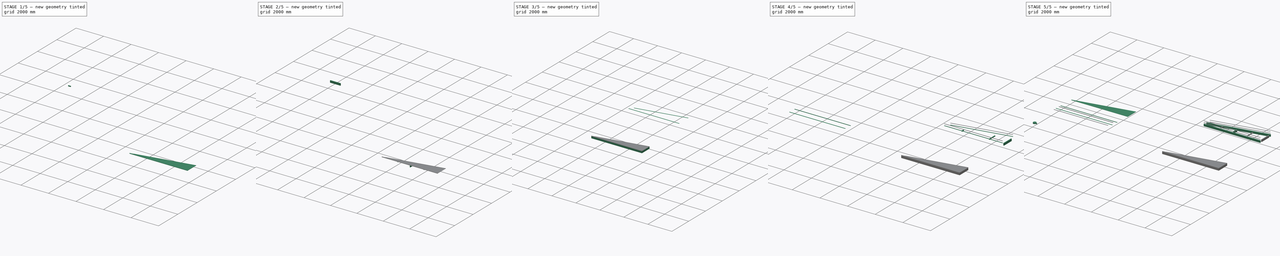
[diagram: build sequence overview — one tinted view per stage of 5, left to right]
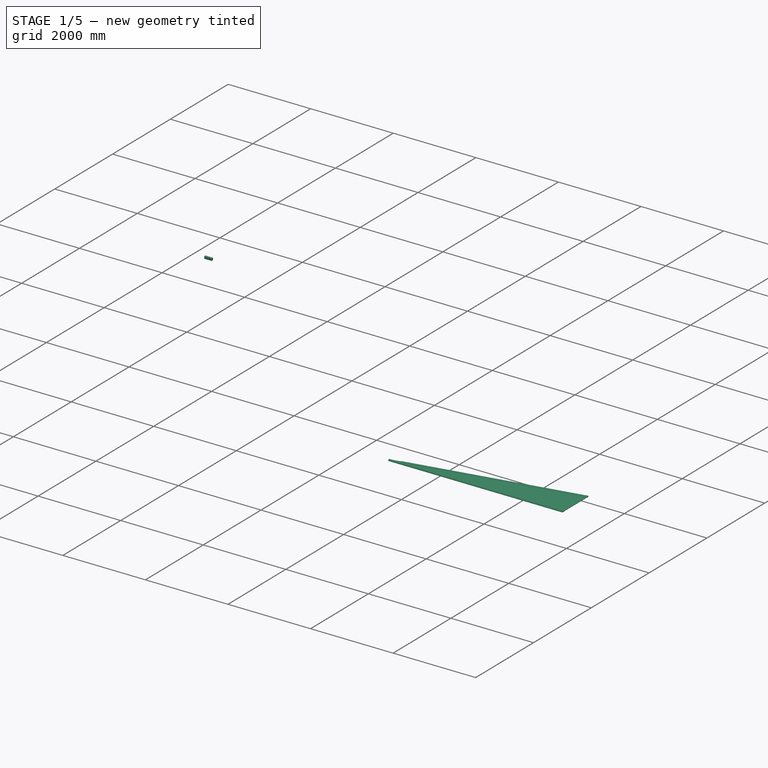
[diagram: stage 1 of 5 — iso view after this stage's code; geometry added in this stage tinted green]
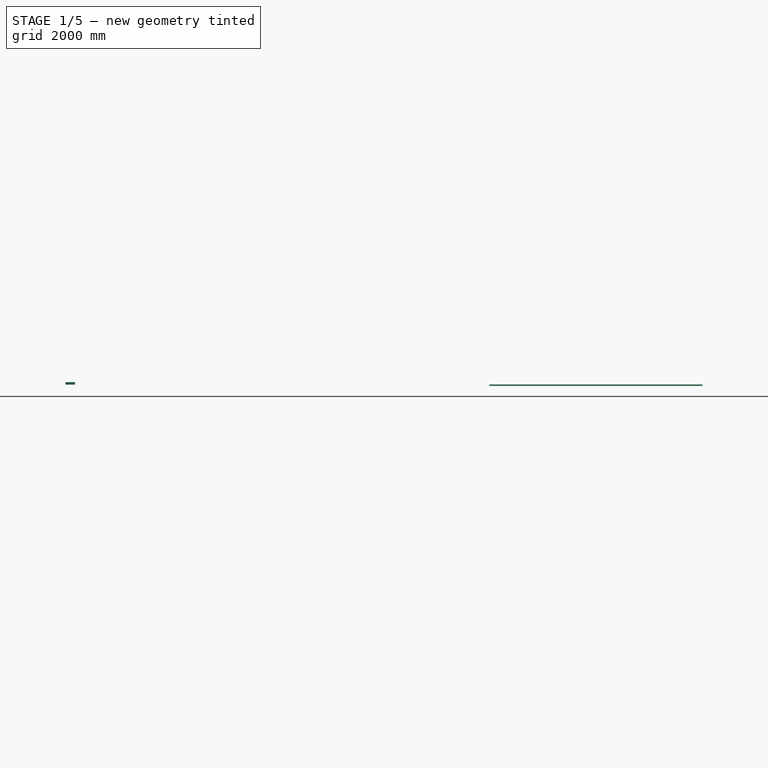
[diagram: stage 1 of 5 — front view after this stage's code; geometry added in this stage tinted green]
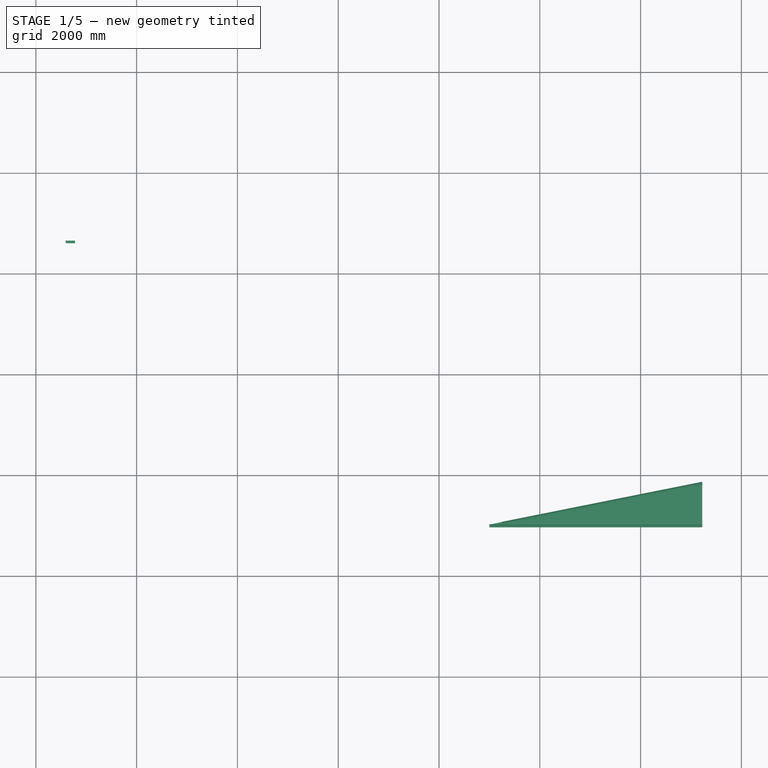
[diagram: stage 1 of 5 — top view after this stage's code; geometry added in this stage tinted green]
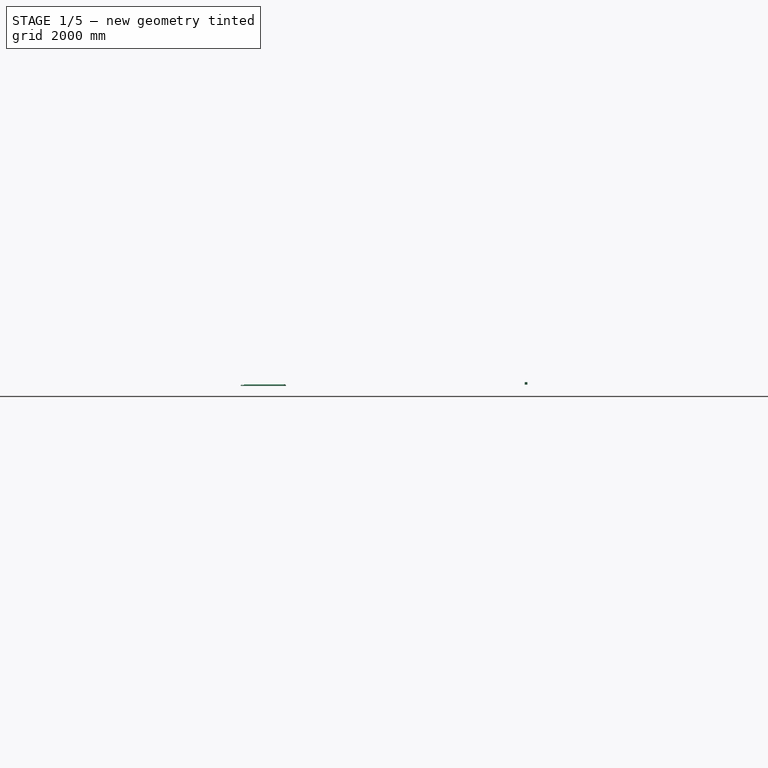
[diagram: stage 1 of 5 — right view after this stage's code; geometry added in this stage tinted green]
FCSTD DOCUMENT  (FreeCAD 0.16R5121 (Git))
Label: Triangle panel
License: All rights reserved
LicenseURL: http://en.wikipedia.org/wiki/All_rights_reserved
objects: Part::Part2DObjectPython×72, Part::Feature×51, Part::FeaturePython×37, App::FeaturePython×23, App::Annotation×17, App::DocumentObjectGroup×11, Sketcher::SketchObject×6, App::MaterialObjectPython×3, Part::Revolution×3, Drawing::FeatureViewPython×2, App::DocumentObjectGroupPython×1, PartDesign::Pad×1, Part::Compound×1, Drawing::FeaturePage×1
note: 172 computed .brp shape members not serialized (recipe doc carries the construction recipe); baked Part::Feature solids carry a one-line shape summary decoded from their .brp

FEATURE [Part::FeaturePython] Structure021  label="Structure005"  # WARN: FeaturePython — macro-defined, semantics opaque (R4)
  Base = -> DWire003
  Height = 50.8
  Length = 0
  MoveWithHost = false
  Nodes = (2) [(10039.2,-4158.28,0),(10039.2,-4158.28,50.8)]
  Normal = (0,0,0)
  Placement = pos=(-3474.43,-13406.1,101.6) rot=(0,0,1;1.5708rad)
  Role = 0
  Width = 200
FEATURE [Part::FeaturePython] Panel001  label="16'x3' Double-walled polycarbonate panel001"  # WARN: FeaturePython — macro-defined, semantics opaque (R4)
  Base = -> DWire007
  BaseMaterial = -> Material001
  Length = 0
  MoveWithHost = false
  Placement = pos=(8796.5,1696.83,303.183) rot=(0,0,1;0rad)
  Role = 0
  Sheets = 1
  Thickness = 11.1125
  Width = 0
FEATURE [Part::FeaturePython] Structure040  label="Side aluminium profile (bottom)004"  # WARN: FeaturePython — macro-defined, semantics opaque (R4)
  Base = -> Sketch
  BaseMaterial = -> Material002
  Height = 4223.35
  Length = 0
  MoveWithHost = false
  Normal = (0,0,0)
  Placement = pos=(13223.4,-8999.73,83.7221) rot=(0.57735,-0.57735,-0.57735;2.0944rad)
  Role = 0
  Width = 200
FEATURE [Part::FeaturePython] Structure041  label="Side aluminium profile (top)004"  # WARN: FeaturePython — macro-defined, semantics opaque (R4)
  Base = -> Sketch001
  BaseMaterial = -> Material002
  Height = 4223.35
  Length = 0
  MoveWithHost = false
  Normal = (0,0,0)
  Placement = pos=(13223.3,-8999.72,81.8435) rot=(0.57735,-0.57735,-0.57735;2.0944rad)
  Role = 0
  Width = 200
FEATURE [Part::FeaturePython] Structure042  label="Side aluminium profile (top)005"  # WARN: FeaturePython — macro-defined, semantics opaque (R4)
  Base = -> Sketch001
  BaseMaterial = -> Material002
  Height = 4050
  Length = 0
  MoveWithHost = false
  Normal = (0,0,0)
  Placement = pos=(13223.4,-8155.99,81.8435) rot=(0.653141,-0.535447,-0.535447;1.98443rad)
  Role = 0
  Width = 200
FEATURE [Part::FeaturePython] Structure043  label="Side aluminium profile (bottom)005"  # WARN: FeaturePython — macro-defined, semantics opaque (R4)
  Base = -> Sketch
  BaseMaterial = -> Material002
  Height = 4050
  Length = 0
  MoveWithHost = false
  Normal = (0,0,0)
  Placement = pos=(13223.3,-8155.57,83.7221) rot=(0.653141,-0.535447,-0.535447;1.98443rad)
  Role = 0
  Width = 200
FEATURE [Part::FeaturePython] Panel002  label="Clone of 16'x3' Double-walled polycarbonate panel001"  # WARN: FeaturePython — macro-defined, semantics opaque (R4)
  BaseMaterial = -> Material001
  CloneOf = -> Panel001
  Length = 0
  MoveWithHost = false
  Placement = pos=(8930.22,-3030.81,79.8629) rot=(0,0,1;0rad)
  Role = 0
  Sheets = 1
  Thickness = 0
  Width = 0
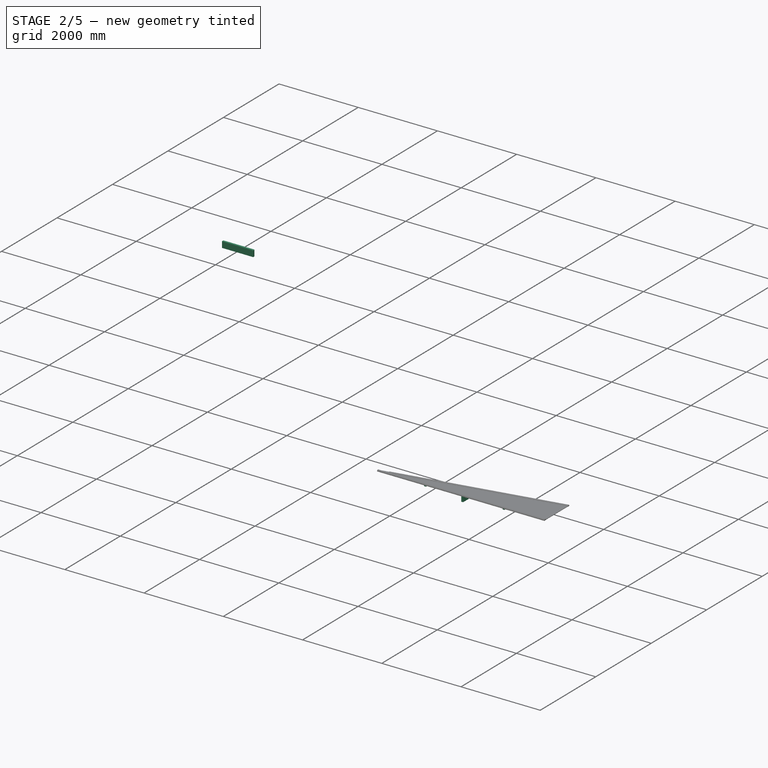
[diagram: stage 2 of 5 — iso view after this stage's code; geometry added in this stage tinted green]
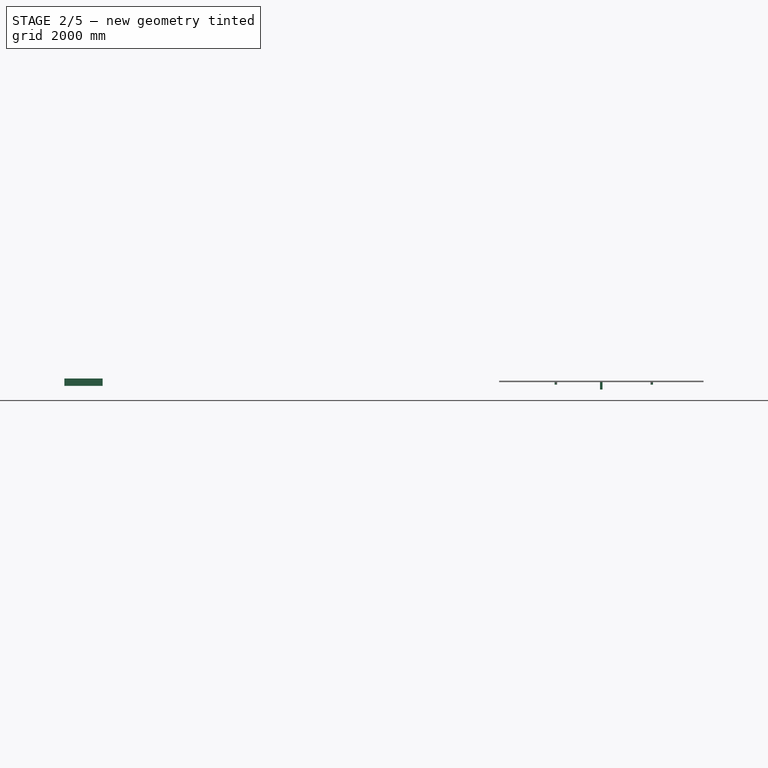
[diagram: stage 2 of 5 — front view after this stage's code; geometry added in this stage tinted green]
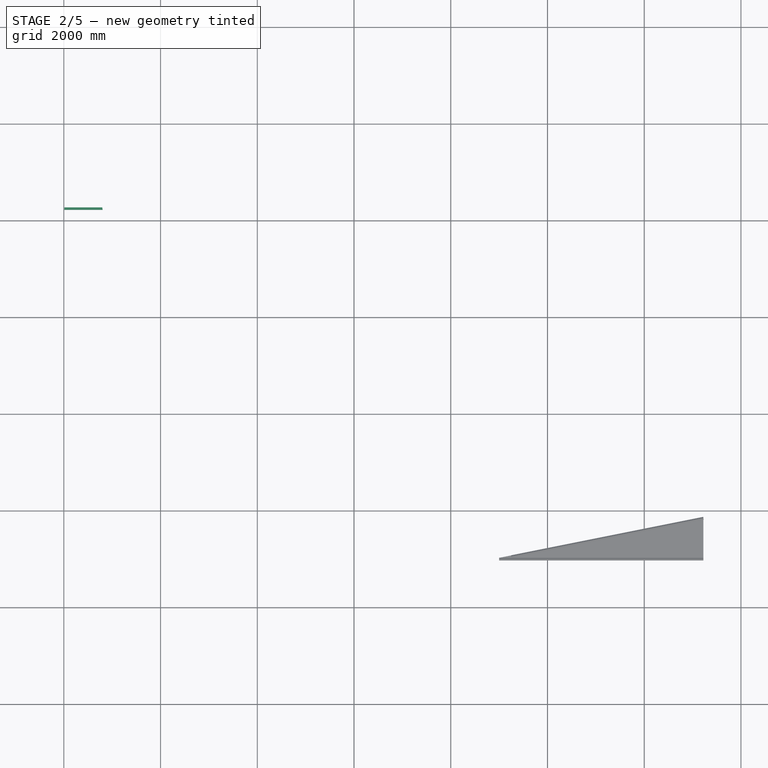
[diagram: stage 2 of 5 — top view after this stage's code; geometry added in this stage tinted green]
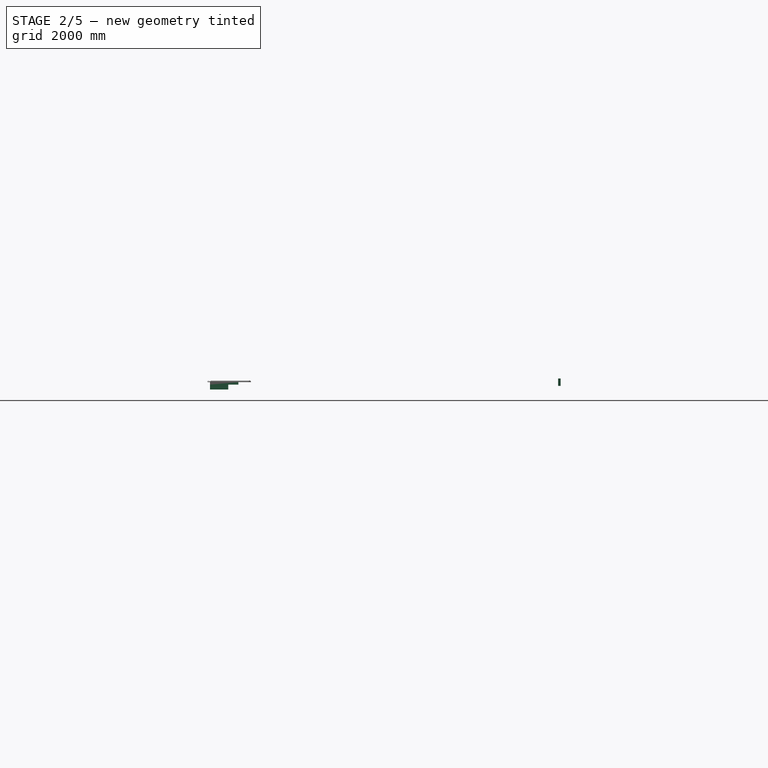
[diagram: stage 2 of 5 — right view after this stage's code; geometry added in this stage tinted green]
FEATURE [App::MaterialObjectPython] Material  label="Wood"  # material (typed FeaturePython)
  Material = AuthorAndLicense=(c) 2015 Bernd Hahnebach (CC-BY 3.0); CardName=Standard Wood Material; Description=A standard construction wood; DiffuseColor=(0.8705882352941177, 0.6, 0.4196078431372549); Father=Aggregate; Name=Wood; PoissonRatio=0.05; ProductURL=http://en.wikipedia.org/wiki/Wood; SpecificWeight=500; YoungsModulus=12000 MPa
FEATURE [Part::FeaturePython] Structure  label="16' Side lumber 01"  # WARN: FeaturePython — macro-defined, semantics opaque (R4)
  BaseMaterial = -> Material
  Height = 152.4
  Length = 4223.35
  MoveWithHost = false
  Nodes = (2) [(0,0,0),(4223.35,0,0)]
  Normal = (0,0,0)
  Placement = pos=(6.46623,-11.6303,76.2) rot=(0,0,1;0rad)
  Role = 0
  Width = 50.8
FEATURE [Part::Part2DObjectPython] DWire001  # Draft 2D object (typed FeaturePython)
  ChamferSize = 0
  Closed = true
  End = (13089.6,-3456.3,0)
  FilletRadius = 0
  Length = 1677.82
  MakeFace = true
  Points = (4) [(13089.3,-4249.16,0),(13038.8,-4249.16,0),(13038.8,-3466.46,0),(13089.6,-3456.3,0)]
  Start = (13089.3,-4249.16,0)
FEATURE [Part::FeaturePython] Structure018  label="Structure002"  # WARN: FeaturePython — macro-defined, semantics opaque (R4)
  Base = -> DWire001
  Height = 152.4
  Length = 0
  MoveWithHost = false
  Nodes = (2) [(13064.2,-3854.81,0),(13064.2,-3854.81,152.4)]
  Normal = (0,0,0)
  Placement = pos=(4259.31,11311,0) rot=(0,0,-1;1.5708rad)
  Role = 0
  Width = 200
FEATURE [Part::Part2DObjectPython] DWire002  # Draft 2D object (typed FeaturePython)
  ChamferSize = 0
  Closed = true
  End = (10952.6,-3883.71,0)
  FilletRadius = 0
  Length = 844.892
  MakeFace = true
  Points = (4) [(10952.6,-4250.17,0),(11003,-4250.17,0),(11003,-3873.62,0),(10952.6,-3883.71,0)]
  Start = (10952.6,-4250.17,0)
  Support = -> Structure
FEATURE [Part::FeaturePython] Structure019  label="Structure003"  # WARN: FeaturePython — macro-defined, semantics opaque (R4)
  Base = -> DWire002
  Height = 152.4
  Length = 0
  MoveWithHost = false
  Nodes = (2) [(10977.9,-4064.41,0),(10977.9,-4064.41,152.4)]
  Normal = (0,0,0)
  Placement = pos=(-3080.7,-12731.2,0) rot=(0,0,1;1.5708rad)
  Role = 0
  Width = 200
FEATURE [Part::Part2DObjectPython] Line  # Draft 2D object (typed FeaturePython)
  ChamferSize = 0
  Closed = false
  End = (13038.8,-4597.83,0)
  FilletRadius = 0
  Length = 2035.83
  MakeFace = true
  Points = (2) [(11003,-4597.83,0),(13038.8,-4597.83,0)]
  Start = (11003,-4597.83,0)
FEATURE [Part::Part2DObjectPython] Line067  # Draft 2D object (typed FeaturePython)
  ChamferSize = 0
  Closed = false
  End = (9125.31,-4597.83,0)
  FilletRadius = 0
  Length = 1827.25
  MakeFace = true
  Points = (2) [(10952.6,-4597.83,0),(9125.31,-4597.83,0)]
  Start = (10952.6,-4597.83,0)
FEATURE [Part::Part2DObjectPython] Line068  # Draft 2D object (typed FeaturePython)
  ChamferSize = 0
  Closed = false
  End = (10038.9,-3546.56,124.852)
  FilletRadius = 0
  Length = 1150.66
  MakeFace = true
  Placement = pos=(0,-99.3899,124.852) rot=(0,0,1;0rad)
  Points = (2) [(10038.9,-4597.83,0),(10038.9,-3447.17,0)]
  Start = (10038.9,-4697.22,124.852)
FEATURE [Part::Part2DObjectPython] Line069  # Draft 2D object (typed FeaturePython)
  ChamferSize = 0
  Closed = false
  End = (11003,-4597.83,0)
  FilletRadius = 0
  Length = 50.4467
  MakeFace = true
  Points = (2) [(10952.6,-4597.83,0),(11003,-4597.83,0)]
  Start = (10952.6,-4597.83,0)
FEATURE [Part::Part2DObjectPython] Line070  # Draft 2D object (typed FeaturePython)
  ChamferSize = 0
  Closed = false
  End = (12020.9,-3256.66,0)
  FilletRadius = 0
  Length = 1341.17
  MakeFace = true
  Points = (2) [(12020.9,-4597.83,0),(12020.9,-3256.66,0)]
  Start = (12020.9,-4597.83,0)
FEATURE [Part::Part2DObjectPython] Line071  # Draft 2D object (typed FeaturePython)
  ChamferSize = 0
  Closed = false
  End = (10064.2,-4597.83,0)
  FilletRadius = 0
  Length = 923.413
  MakeFace = true
  Placement = pos=(-913.8,788.898,0) rot=(0,0,1;0rad)
  Points = (2) [(10978,-4463.31,0),(10978,-5386.73,0)]
  Start = (10064.2,-3674.42,0)
FEATURE [Part::Part2DObjectPython] Line072  # Draft 2D object (typed FeaturePython)
  ChamferSize = 0
  Closed = false
  End = (12046.1,-4441.34,0)
  FilletRadius = 0
  Length = 923.413
  MakeFace = true
  Placement = pos=(1068.19,945.39,0) rot=(0,0,1;0rad)
  Points = (2) [(10978,-4463.31,0),(10978,-5386.73,0)]
  Start = (12046.1,-3517.92,0)
FEATURE [Part::Part2DObjectPython] Line073  # Draft 2D object (typed FeaturePython)
  ChamferSize = 0
  Closed = false
  End = (10013.7,-4597.83,0)
  FilletRadius = 0
  Length = 923.413
  MakeFace = true
  Placement = pos=(-964.246,788.898,0) rot=(0,0,1;0rad)
  Points = (2) [(10978,-4463.31,0),(10978,-5386.73,0)]
  Start = (10013.7,-3674.42,0)
FEATURE [Part::Part2DObjectPython] Line074  # Draft 2D object (typed FeaturePython)
  ChamferSize = 0
  Closed = false
  End = (11995.7,-4597.83,0)
  FilletRadius = 0
  Length = 923.413
  MakeFace = true
  Placement = pos=(1017.74,788.898,0) rot=(0,0,1;0rad)
  Points = (2) [(10978,-4463.31,0),(10978,-5386.73,0)]
  Start = (11995.7,-3674.42,0)
FEATURE [Part::Part2DObjectPython] DWire003  # Draft 2D object (typed FeaturePython)
  ChamferSize = 0
  Closed = true
  End = (10013.7,-4071.48,0)
  FilletRadius = 0
  Length = 469.354
  MakeFace = true
  Points = (4) [(10013.7,-4250.17,0),(10064.2,-4250.17,0),(10064.2,-4061.39,0),(10013.7,-4071.48,0)]
  Start = (10013.7,-4250.17,0)
FEATURE [Part::Part2DObjectPython] DWire004  # Draft 2D object (typed FeaturePython)
  ChamferSize = 0
  Closed = true
  End = (12046.1,-3665,0)
  FilletRadius = 0
  Length = 1262.15
  MakeFace = true
  Points = (4) [(12046.1,-4250.17,0),(11995.7,-4250.17,0),(11995.7,-3675.08,0),(12046.1,-3665,0)]
  Start = (12046.1,-4250.17,0)
FEATURE [Part::FeaturePython] Structure020  label="Structure004"  # WARN: FeaturePython — macro-defined, semantics opaque (R4)
  Base = -> DWire004
  Height = 50.8
  Length = 0
  MoveWithHost = false
  Nodes = (2) [(12021,-3960.1,0),(12021,-3960.1,50.8)]
  Normal = (0,0,0)
  Placement = pos=(4262.05,8653.73,101.6) rot=(0,0,-1;1.5708rad)
  Role = 0
  Width = 200
FEATURE [Part::FeaturePython] Structure037  label="Clone of Structure008"  # WARN: FeaturePython — macro-defined, semantics opaque (R4)
  CloneOf = -> Structure020
  Height = 2000
  Length = 200
  MoveWithHost = false
  Nodes = (2) [(0,0,0),(0,0,2000)]
  Normal = (0,0,0)
  Placement = pos=(134.07,-4725.44,25.4) rot=(0,0,1;0rad)
  Role = 0
  Width = 200
FEATURE [Part::FeaturePython] Structure038  label="Clone of Structure009"  # WARN: FeaturePython — macro-defined, semantics opaque (R4)
  CloneOf = -> Structure019
  Height = 2000
  Length = 200
  MoveWithHost = false
  Nodes = (2) [(0,0,0),(0,0,2000)]
  Normal = (0,0,0)
  Placement = pos=(134.07,-4725.44,-76.2) rot=(0,0,1;0rad)
  Role = 0
  Width = 200
FEATURE [Part::FeaturePython] Structure039  label="Clone of Structure010"  # WARN: FeaturePython — macro-defined, semantics opaque (R4)
  CloneOf = -> Structure021
  Height = 2000
  Length = 200
  MoveWithHost = false
  Nodes = (2) [(0,0,0),(0,0,2000)]
  Normal = (0,0,0)
  Placement = pos=(134.071,-4725.44,25.4) rot=(0,0,1;0rad)
  Role = 0
  Width = 200
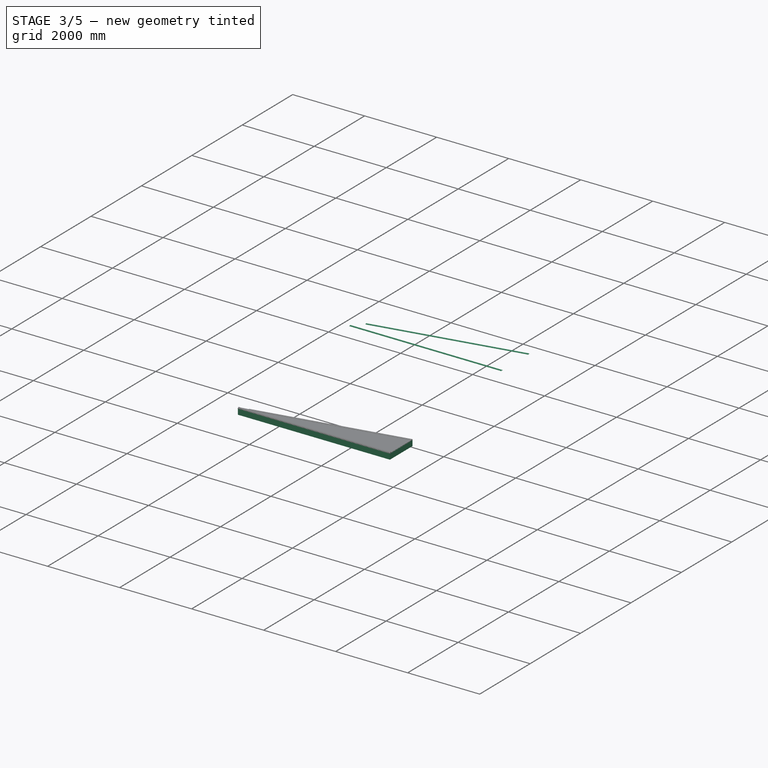
[diagram: stage 3 of 5 — iso view after this stage's code; geometry added in this stage tinted green]
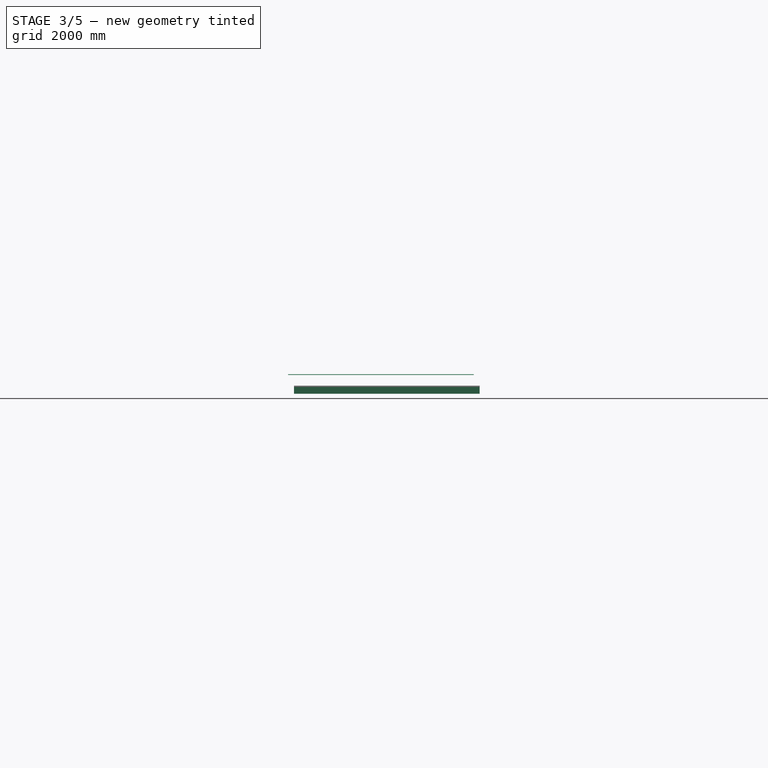
[diagram: stage 3 of 5 — front view after this stage's code; geometry added in this stage tinted green]
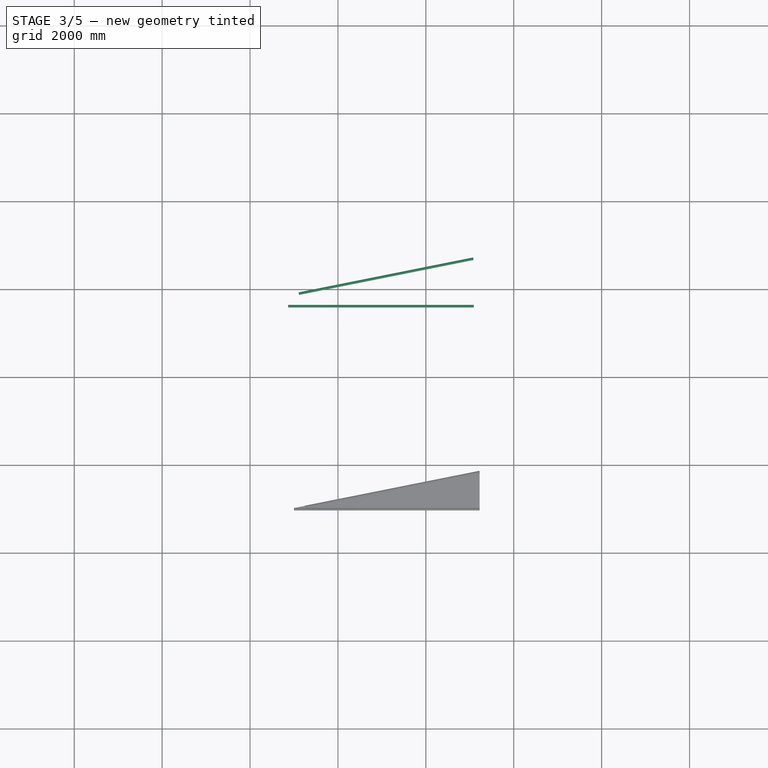
[diagram: stage 3 of 5 — top view after this stage's code; geometry added in this stage tinted green]
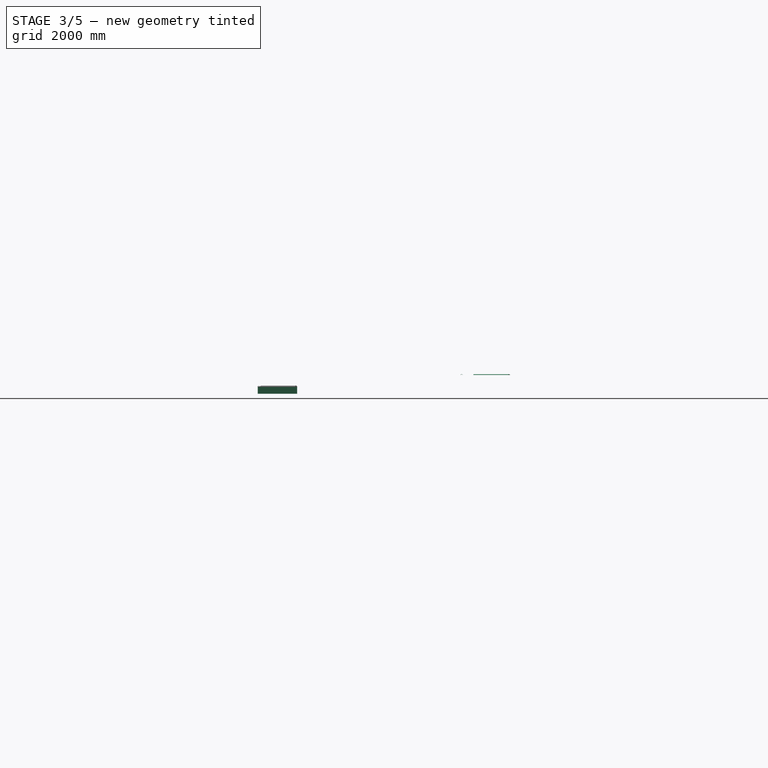
[diagram: stage 3 of 5 — right view after this stage's code; geometry added in this stage tinted green]
FEATURE [App::Annotation] Text008  label="Accessories description"
  LabelText = Sealing tape | Silicone sealant
  Position = (9.18841,-9466.41,0)
FEATURE [Sketcher::SketchObject] Sketch007
  sketch-geometry (4):
    g0: LineSegment StartX=0 StartY=-370.384 StartZ=0 EndX=-91.5678 EndY=-370.384 EndZ=0
    g1: LineSegment StartX=-91.5678 StartY=-370.384 StartZ=0 EndX=-91.5678 EndY=501.898 EndZ=0
    g2: LineSegment StartX=-91.5678 StartY=501.898 StartZ=0 EndX=-22.2271 EndY=501.898 EndZ=0
    g3: LineSegment StartX=-22.2271 StartY=501.898 StartZ=0 EndX=0 EndY=898.047 EndZ=0
  constraints (8):
    c: PointOnObject(g0,g-2)
    c: Coincident(g0,g1)
    c: Vertical(g1)
    c: Coincident(g1,g2)
    c: Horizontal(g2)
    c: Coincident(g2,g3)
    c: PointOnObject(g3,g-2)
    c: Horizontal(g0)
FEATURE [Part::Revolution] Revolve002  label="Silicone"
  Angle = 360
  Axis = (0,1,0)
  Base = (0,0,0)
  Placement = pos=(427.532,-10328.5,0) rot=(0,0,-1;1.5708rad)
  Solid = true
  Source = -> Sketch007
FEATURE [App::DocumentObjectGroup] Group006  label="Accessories"
  Group = -> [Revolve002,Pad,Array,Array001]
FEATURE [Part::Feature] Edge001
  Placement = pos=(8459.94,-2679.95,0) rot=(0,0,1;0rad)
  shape: bbox 2e-07 x 895.5 x 2e-07 mm, 0 faces, 0 solids (baked)
FEATURE [Part::Feature] Edge002
  Placement = pos=(8459.94,-2679.95,0) rot=(0,0,1;0rad)
  shape: bbox 4477 x 2e-07 x 2e-07 mm, 0 faces, 0 solids (baked)
FEATURE [Part::Part2DObjectPython] Line060  # Draft 2D object (typed FeaturePython)
  ChamferSize = 0
  Closed = false
  End = (13089.3,-4249.16,0)
  FilletRadius = 0
  Length = 5057.66
  MakeFace = true
  Points = (2) [(8031.62,-4249.16,0),(13089.3,-4249.16,0)]
  Start = (8031.62,-4249.16,0)
FEATURE [Part::Part2DObjectPython] Line061  # Draft 2D object (typed FeaturePython)
  ChamferSize = 0
  Closed = false
  End = (8866.28,-4677.47,0)
  FilletRadius = 0
  Length = 428.306
  MakeFace = true
  Points = (2) [(8866.28,-4249.16,0),(8866.28,-4677.47,0)]
  Start = (8866.28,-4249.16,0)
FEATURE [Part::Part2DObjectPython] Line062  # Draft 2D object (typed FeaturePython)
  ChamferSize = 0
  Closed = false
  End = (13038.8,-4299.95,0)
  FilletRadius = 0
  Length = 895.459
  MakeFace = true
  Points = (2) [(13038.8,-3404.49,0),(13038.8,-4299.95,0)]
  Start = (13038.8,-3404.49,0)
FEATURE [Part::Part2DObjectPython] Line063  # Draft 2D object (typed FeaturePython)
  ChamferSize = 0
  Closed = false
  End = (13099.6,-3454.3,0)
  FilletRadius = 0
  Length = 4565.96
  MakeFace = true
  Points = (2) [(8622.3,-4349.76,0),(13099.6,-3454.3,0)]
  Start = (8622.3,-4349.76,0)
FEATURE [Part::Part2DObjectPython] Line059  # Draft 2D object (typed FeaturePython)
  ChamferSize = 0
  Closed = false
  End = (13089.6,-3404.49,0)
  FilletRadius = 0
  Length = 4565.96
  MakeFace = true
  Points = (2) [(8612.34,-4299.95,0),(13089.6,-3404.49,0)]
  Start = (8612.34,-4299.95,0)
FEATURE [Part::Part2DObjectPython] Line064  # Draft 2D object (typed FeaturePython)
  ChamferSize = 0
  Closed = false
  End = (13089.6,-4463.31,0)
  FilletRadius = 0
  Length = 4223.35
  MakeFace = true
  Points = (2) [(8866.28,-4463.31,0),(13089.6,-4463.31,0)]
  Start = (8866.28,-4463.31,0)
FEATURE [Part::Part2DObjectPython] Line065  # Draft 2D object (typed FeaturePython)
  ChamferSize = 0
  Closed = false
  End = (10952.6,-4597.83,0)
  FilletRadius = 0
  Length = 923.413
  MakeFace = true
  Placement = pos=(-25.4,788.898,0) rot=(0,0,1;0rad)
  Points = (2) [(10978,-4463.31,0),(10978,-5386.73,0)]
  Start = (10952.6,-3674.42,0)
FEATURE [Part::Part2DObjectPython] Line066  # Draft 2D object (typed FeaturePython)
  ChamferSize = 0
  Closed = false
  End = (11003,-4597.83,0)
  FilletRadius = 0
  Length = 923.413
  MakeFace = true
  Placement = pos=(25.0467,788.898,0) rot=(0,0,1;0rad)
  Points = (2) [(10978,-4463.31,0),(10978,-5386.73,0)]
  Start = (11003,-3674.42,0)
FEATURE [App::FeaturePython] Dimension016  # Draft dimension (typed FeaturePython)
  Dimline = (12365.3,-4891.73,0)
  Direction = (0,0,0)
  Distance = 4223.35
  End = (13089.6,-4463.31,0)
  Normal = (0,0,1)
  Start = (8866.28,-4463.31,0)
FEATURE [Part::Part2DObjectPython] DWire  # Draft 2D object (typed FeaturePython)
  ChamferSize = 0
  Closed = true
  End = (13089.6,-3404.49,0)
  FilletRadius = 0
  Length = 8660.66
  MakeFace = true
  Points = (4) [(8866.28,-4249.16,0),(9125.31,-4249.16,0),(13089.6,-3456.3,0),(13089.6,-3404.49,0)]
  Start = (8866.28,-4249.16,0)
FEATURE [Part::FeaturePython] Structure017  label="Structure001"  # WARN: FeaturePython — macro-defined, semantics opaque (R4)
  Base = -> DWire
  Height = 152.4
  Length = 0
  MoveWithHost = false
  Nodes = (2) [(11042,-3839.64,0),(11042,-3839.64,2000)]
  Normal = (0,0,0)
  Placement = pos=(-7850.71,5285.1,0) rot=(0,0,-1;0.197396rad)
  Role = 0
  Width = 200
FEATURE [Part::FeaturePython] Structure032  label="Side aluminium profile (top)002"  # WARN: FeaturePython — macro-defined, semantics opaque (R4)
  Base = -> Sketch001
  BaseMaterial = -> Material002
  Height = 4223.35
  Length = 0
  MoveWithHost = false
  Normal = (0,0,0)
  Placement = pos=(13089.6,-4385.11,341.066) rot=(0.57735,-0.57735,-0.57735;2.0944rad)
  Role = 0
  Width = 200
FEATURE [Part::FeaturePython] Structure033  label="Side aluminium profile (top)003"  # WARN: FeaturePython — macro-defined, semantics opaque (R4)
  Base = -> Sketch001
  BaseMaterial = -> Material002
  Height = 4050
  Length = 0
  MoveWithHost = false
  Normal = (0,0,0)
  Placement = pos=(13080.8,-3306.12,341.066) rot=(0.653141,-0.535447,-0.535447;1.98443rad)
  Role = 0
  Width = 200
FEATURE [App::DocumentObjectGroup] Group009  label="Panel"
  Group = -> [Structure030,Structure031,Structure032,Structure033,Panel001]
FEATURE [Part::Part2DObjectPython] Line075  # Draft 2D object (typed FeaturePython)
  ChamferSize = 0
  Closed = false
  End = (10977.8,-3546.56,124.852)
  FilletRadius = 0
  Length = 1150.66
  MakeFace = true
  Placement = pos=(938.846,-99.3899,124.852) rot=(0,0,1;0rad)
  Points = (2) [(10038.9,-4597.83,0),(10038.9,-3447.17,0)]
  Start = (10977.8,-4697.22,124.852)
FEATURE [Part::Part2DObjectPython] Line076  # Draft 2D object (typed FeaturePython)
  ChamferSize = 0
  Closed = false
  End = (12020.9,-3046.56,124.85)
  FilletRadius = 0
  Length = 1650.66
  MakeFace = true
  Placement = pos=(1981.98,-99.3899,124.852) rot=(0,0,1;0rad)
  Points = (2) [(10038.9,-4597.83,0),(10038.9,-2947.17,-0.00241699)]
  Start = (12020.9,-4697.22,124.852)
FEATURE [Part::Part2DObjectPython] Line077  # Draft 2D object (typed FeaturePython)
  ChamferSize = 0
  Closed = false
  End = (10977.8,-3546.56,74.0524)
  FilletRadius = 0
  Length = 1150.66
  MakeFace = true
  Placement = pos=(938.846,-99.3899,74.0524) rot=(0,0,1;0rad)
  Points = (2) [(10038.9,-4597.83,0),(10038.9,-3447.17,0)]
  Start = (10977.8,-4697.22,74.0524)
FEATURE [Part::Part2DObjectPython] Line078  # Draft 2D object (typed FeaturePython)
  ChamferSize = 0
  Closed = false
  End = (10977.8,-3546.56,23.2524)
  FilletRadius = 0
  Length = 1150.66
  MakeFace = true
  Placement = pos=(938.846,-99.3899,23.2524) rot=(0,0,1;0rad)
  Points = (2) [(10038.9,-4597.83,0),(10038.9,-3447.17,0)]
  Start = (10977.8,-4697.22,23.2524)
FEATURE [Part::Part2DObjectPython] Line081  # Draft 2D object (typed FeaturePython)
  ChamferSize = 0
  Closed = false
  End = (13064.1,-3045.55,124.85)
  FilletRadius = 0
  Length = 1650.66
  MakeFace = true
  Placement = pos=(3025.12,-98.3823,124.852) rot=(0,0,1;0rad)
  Points = (2) [(10038.9,-4597.83,0),(10038.9,-2947.17,-0.00241699)]
  Start = (13064.1,-4696.21,124.852)
FEATURE [Part::Part2DObjectPython] Line082  # Draft 2D object (typed FeaturePython)
  ChamferSize = 0
  Closed = false
  End = (13064.1,-3045.55,74.05)
  FilletRadius = 0
  Length = 1650.66
  MakeFace = true
  Placement = pos=(3025.12,-98.3827,74.0524) rot=(0,0,1;0rad)
  Points = (2) [(10038.9,-4597.83,0),(10038.9,-2947.17,-0.00241699)]
  Start = (13064.1,-4696.21,74.0524)
FEATURE [Part::Part2DObjectPython] Line083  # Draft 2D object (typed FeaturePython)
  ChamferSize = 0
  Closed = false
  End = (13064.1,-3045.55,23.25)
  FilletRadius = 0
  Length = 1650.66
  MakeFace = true
  Placement = pos=(3025.12,-98.3827,23.2524) rot=(0,0,1;0rad)
  Points = (2) [(10038.9,-4597.83,0),(10038.9,-2947.17,-0.00241699)]
  Start = (13064.1,-4696.21,23.2524)
FEATURE [Part::Part2DObjectPython] Line084  # Draft 2D object (typed FeaturePython)
  ChamferSize = 0
  Closed = false
  End = (9005.89,-3546.56,124.852)
  FilletRadius = 0
  Length = 1150.66
  MakeFace = true
  Placement = pos=(-1033.05,-99.3899,124.852) rot=(0,0,1;0rad)
  Points = (2) [(10038.9,-4597.83,0),(10038.9,-3447.17,0)]
  Start = (9005.89,-4697.22,124.852)
FEATURE [Part::Part2DObjectPython] Line085  # Draft 2D object (typed FeaturePython)
  ChamferSize = 0
  Closed = false
  End = (9005.89,-3546.56,74.0524)
  FilletRadius = 0
  Length = 1150.66
  MakeFace = true
  Placement = pos=(-1033.05,-99.3899,74.0524) rot=(0,0,1;0rad)
  Points = (2) [(10038.9,-4597.83,0),(10038.9,-3447.17,0)]
  Start = (9005.89,-4697.22,74.0524)
FEATURE [Part::Part2DObjectPython] Line086  # Draft 2D object (typed FeaturePython)
  ChamferSize = 0
  Closed = false
  End = (9005.89,-3546.56,23.2524)
  FilletRadius = 0
  Length = 1150.66
  MakeFace = true
  Placement = pos=(-1033.05,-99.3899,23.2524) rot=(0,0,1;0rad)
  Points = (2) [(10038.9,-4597.83,0),(10038.9,-3447.17,0)]
  Start = (9005.89,-4697.22,23.2524)
FEATURE [Part::FeaturePython] Clone  label="Clone of 3" screw"  # Draft clone (typed FeaturePython)
  Objects = -> [Revolve]
  Placement = pos=(9005.89,-3495.21,124.852) rot=(0,0,1;0rad)
  Scale = (1,1,1)
FEATURE [Part::Feature] Clone001  label="Clone of 3" screw001"
  Placement = pos=(9005.89,-3495.21,74.0524) rot=(0,0,1;0rad)
  shape: bbox 19.33 x 85.92 x 19.33 mm, 4 faces, 0 solids (baked)
FEATURE [Part::Feature] Clone002  label="Clone of 3" screw002"
  Placement = pos=(9005.89,-3495.21,23.2524) rot=(0,0,1;0rad)
  shape: bbox 19.33 x 85.92 x 19.33 mm, 4 faces, 0 solids (baked)
FEATURE [Part::Feature] Clone003  label="Clone of 3" screw003"
  Placement = pos=(10038.9,-3495.21,124.852) rot=(0,0,1;0rad)
  shape: bbox 19.33 x 85.92 x 19.33 mm, 4 faces, 0 solids (baked)
FEATURE [Part::Feature] Clone004  label="Clone of 3" screw004"
  Placement = pos=(10977.8,-3495.21,124.852) rot=(0,0,1;0rad)
  shape: bbox 19.33 x 85.92 x 19.33 mm, 4 faces, 0 solids (baked)
FEATURE [Part::Feature] Clone005  label="Clone of 3" screw005"
  Placement = pos=(10977.8,-3495.21,74.0524) rot=(0,0,1;0rad)
  shape: bbox 19.33 x 85.92 x 19.33 mm, 4 faces, 0 solids (baked)
FEATURE [Part::Feature] Clone006  label="Clone of 3" screw006"
  Placement = pos=(10977.8,-3495.21,23.2524) rot=(0,0,1;0rad)
  shape: bbox 19.33 x 85.92 x 19.33 mm, 4 faces, 0 solids (baked)
FEATURE [Part::Feature] Clone007  label="Clone of 3" screw007"
  Placement = pos=(12020.9,-2995.21,124.85) rot=(0,0,1;0rad)
  shape: bbox 19.33 x 85.92 x 19.33 mm, 4 faces, 0 solids (baked)
FEATURE [Part::Feature] Clone008  label="Clone of 3" screw008"
  Placement = pos=(13064.1,-2994.2,124.85) rot=(0,0,1;0rad)
  shape: bbox 19.33 x 85.92 x 19.33 mm, 4 faces, 0 solids (baked)
FEATURE [Part::Feature] Clone009  label="Clone of 3" screw009"
  Placement = pos=(13064.1,-2994.2,74.05) rot=(0,0,1;0rad)
  shape: bbox 19.33 x 85.92 x 19.33 mm, 4 faces, 0 solids (baked)
FEATURE [Part::Feature] Clone010  label="Clone of 3" screw010"
  Placement = pos=(13064.1,-2994.2,23.25) rot=(0,0,1;0rad)
  shape: bbox 19.33 x 85.92 x 19.33 mm, 4 faces, 0 solids (baked)
FEATURE [Part::Feature] Clone011  label="Clone of 3" screw011"
  Placement = pos=(9005.89,-4748.57,124.852) rot=(0,0,1;3.14159rad)
  shape: bbox 19.33 x 85.92 x 19.33 mm, 4 faces, 0 solids (baked)
FEATURE [Part::Feature] Clone012  label="Clone of 3" screw012"
  Placement = pos=(9005.89,-4748.57,74.0524) rot=(0,0,1;3.14159rad)
  shape: bbox 19.33 x 85.92 x 19.33 mm, 4 faces, 0 solids (baked)
FEATURE [Part::Feature] Clone013  label="Clone of 3" screw013"
  Placement = pos=(9005.89,-4748.57,23.2524) rot=(0,0,1;3.14159rad)
  shape: bbox 19.33 x 85.92 x 19.33 mm, 4 faces, 0 solids (baked)
FEATURE [Part::Feature] Clone014  label="Clone of 3" screw014"
  Placement = pos=(10038.9,-4748.57,124.852) rot=(0,0,1;3.14159rad)
  shape: bbox 19.33 x 85.92 x 19.33 mm, 4 faces, 0 solids (baked)
FEATURE [Part::Feature] Clone015  label="Clone of 3" screw015"
  Placement = pos=(10977.8,-4748.57,124.852) rot=(0,0,1;3.14159rad)
  shape: bbox 19.33 x 85.92 x 19.33 mm, 4 faces, 0 solids (baked)
FEATURE [Part::Feature] Clone016  label="Clone of 3" screw016"
  Placement = pos=(10977.8,-4748.57,74.0524) rot=(0,0,1;3.14159rad)
  shape: bbox 19.33 x 85.92 x 19.33 mm, 4 faces, 0 solids (baked)
FEATURE [Part::Feature] Clone017  label="Clone of 3" screw017"
  Placement = pos=(10977.8,-4748.57,23.2524) rot=(0,0,1;3.14159rad)
  shape: bbox 19.33 x 85.92 x 19.33 mm, 4 faces, 0 solids (baked)
FEATURE [Part::Feature] Clone018  label="Clone of 3" screw018"
  Placement = pos=(12020.9,-4748.57,124.852) rot=(0,0,1;3.14159rad)
  shape: bbox 19.33 x 85.92 x 19.33 mm, 4 faces, 0 solids (baked)
FEATURE [Part::Feature] Clone019  label="Clone of 3" screw019"
  Placement = pos=(13064.1,-4747.57,124.852) rot=(0,0,1;3.14159rad)
  shape: bbox 19.33 x 85.92 x 19.33 mm, 4 faces, 0 solids (baked)
FEATURE [Part::Feature] Clone020  label="Clone of 3" screw020"
  Placement = pos=(13064.1,-4747.57,74.0524) rot=(0,0,1;3.14159rad)
  shape: bbox 19.33 x 85.92 x 19.33 mm, 4 faces, 0 solids (baked)
FEATURE [Part::Feature] Clone021  label="Clone of 3" screw021"
  Placement = pos=(13064.1,-4747.57,23.2524) rot=(0,0,1;3.14159rad)
  shape: bbox 19.33 x 85.92 x 19.33 mm, 4 faces, 0 solids (baked)
FEATURE [Part::Part2DObjectPython] Line087  # Draft 2D object (typed FeaturePython)
  ChamferSize = 0
  Closed = false
  End = (9018.68,-4385.48,477.4)
  FilletRadius = 0
  Length = 650
  MakeFace = true
  Placement = pos=(-8578.25,5075.69,503.58) rot=(0,0,1;0rad)
  Points = (2) [(17596.9,-9461.17,-676.18),(17596.9,-9461.17,-26.18)]
  Start = (9018.68,-4385.48,-172.6)
FEATURE [Part::Part2DObjectPython] Line088  # Draft 2D object (typed FeaturePython)
  ChamferSize = 0
  Closed = false
  End = (9323.48,-4385.48,477.4)
  FilletRadius = 0
  Length = 650
  MakeFace = true
  Placement = pos=(-8273.45,4747.75,503.58) rot=(0,0,1;0rad)
  Points = (2) [(17596.9,-9133.23,-676.18),(17596.9,-9133.23,-26.18)]
  Start = (9323.48,-4385.48,-172.6)
FEATURE [Part::FeaturePython] Clone022  label="Clone of 1" screw"  # Draft clone (typed FeaturePython)
  Objects = -> [Revolve001]
  Placement = pos=(9323.48,-4385.48,517.3) rot=(1,0,0;1.5708rad)
  Scale = (1,1,1)
FEATURE [Part::Feature] Clone023  label="Clone of 1" screw001"
  Placement = pos=(9018.68,-4385.48,517.3) rot=(1,0,0;1.5708rad)
  shape: bbox 21.74 x 21.74 x 31.96 mm, 8 faces, 0 solids (baked)
FEATURE [Part::Feature] Clone024  label="Clone of 1" screw002"
  Placement = pos=(9628.28,-4385.48,517.3) rot=(1,0,0;1.5708rad)
  shape: bbox 21.74 x 21.74 x 31.96 mm, 8 faces, 0 solids (baked)
FEATURE [Part::Part2DObjectPython] Line089  # Draft 2D object (typed FeaturePython)
  ChamferSize = 0
  Closed = false
  End = (9628.28,-4385.48,477.4)
  FilletRadius = 0
  Length = 650
  MakeFace = true
  Placement = pos=(-7968.65,4747.75,503.58) rot=(0,0,1;0rad)
  Points = (2) [(17596.9,-9133.23,-676.18),(17596.9,-9133.23,-26.18)]
  Start = (9628.28,-4385.48,-172.6)
FEATURE [Part::Feature] Clone025  label="Clone of 1" screw003"
  Placement = pos=(10237.9,-4385.48,517.3) rot=(1,0,0;1.5708rad)
  shape: bbox 21.74 x 21.74 x 31.96 mm, 8 faces, 0 solids (baked)
FEATURE [Part::Part2DObjectPython] Line090  # Draft 2D object (typed FeaturePython)
  ChamferSize = 0
  Closed = false
  End = (10237.9,-4385.48,477.4)
  FilletRadius = 0
  Length = 650
  MakeFace = true
  Placement = pos=(-7359.05,5075.69,503.58) rot=(0,0,1;0rad)
  Points = (2) [(17596.9,-9461.17,-676.18),(17596.9,-9461.17,-26.18)]
  Start = (10237.9,-4385.48,-172.6)
FEATURE [Part::Part2DObjectPython] Line091  # Draft 2D object (typed FeaturePython)
  ChamferSize = 0
  Closed = false
  End = (9933.08,-4385.48,477.4)
  FilletRadius = 0
  Length = 650
  MakeFace = true
  Placement = pos=(-7663.85,5075.69,503.58) rot=(0,0,1;0rad)
  Points = (2) [(17596.9,-9461.17,-676.18),(17596.9,-9461.17,-26.18)]
  Start = (9933.08,-4385.48,-172.6)
FEATURE [Part::Feature] Clone026  label="Clone of 1" screw004"
  Placement = pos=(9933.08,-4385.48,517.3) rot=(1,0,0;1.5708rad)
  shape: bbox 21.74 x 21.74 x 31.96 mm, 8 faces, 0 solids (baked)
FEATURE [Part::Feature] Clone027  label="Clone of 1" screw005"
  Placement = pos=(11457.1,-4385.48,517.3) rot=(1,0,0;1.5708rad)
  shape: bbox 21.74 x 21.74 x 31.96 mm, 8 faces, 0 solids (baked)
FEATURE [Part::Feature] Clone028  label="Clone of 1" screw006"
  Placement = pos=(11152.3,-4385.48,517.3) rot=(1,0,0;1.5708rad)
  shape: bbox 21.74 x 21.74 x 31.96 mm, 8 faces, 0 solids (baked)
FEATURE [Part::Feature] Clone029  label="Clone of 1" screw007"
  Placement = pos=(10847.5,-4385.48,517.3) rot=(1,0,0;1.5708rad)
  shape: bbox 21.74 x 21.74 x 31.96 mm, 8 faces, 0 solids (baked)
FEATURE [Part::Feature] Clone030  label="Clone of 1" screw008"
  Placement = pos=(10542.7,-4385.48,517.3) rot=(1,0,0;1.5708rad)
  shape: bbox 21.74 x 21.74 x 31.96 mm, 8 faces, 0 solids (baked)
FEATURE [Part::Part2DObjectPython] Line093  # Draft 2D object (typed FeaturePython)
  ChamferSize = 0
  Closed = false
  End = (10847.5,-4385.48,477.4)
  FilletRadius = 0
  Length = 650
  MakeFace = true
  Placement = pos=(-6749.45,5075.69,503.58) rot=(0,0,1;0rad)
  Points = (2) [(17596.9,-9461.17,-676.18),(17596.9,-9461.17,-26.18)]
  Start = (10847.5,-4385.48,-172.6)
FEATURE [Part::Part2DObjectPython] Line094  # Draft 2D object (typed FeaturePython)
  ChamferSize = 0
  Closed = false
  End = (11152.3,-4385.48,477.4)
  FilletRadius = 0
  Length = 650
  MakeFace = true
  Placement = pos=(-6444.65,5075.69,503.58) rot=(0,0,1;0rad)
  Points = (2) [(17596.9,-9461.17,-676.18),(17596.9,-9461.17,-26.18)]
  Start = (11152.3,-4385.48,-172.6)
FEATURE [Part::Part2DObjectPython] Line095  # Draft 2D object (typed FeaturePython)
  ChamferSize = 0
  Closed = false
  End = (11457.1,-4385.48,477.4)
  FilletRadius = 0
  Length = 650
  MakeFace = true
  Placement = pos=(-6139.85,5075.69,503.58) rot=(0,0,1;0rad)
  Points = (2) [(17596.9,-9461.17,-676.18),(17596.9,-9461.17,-26.18)]
  Start = (11457.1,-4385.48,-172.6)
FEATURE [Part::Part2DObjectPython] Line099  # Draft 2D object (typed FeaturePython)
  ChamferSize = 0
  Closed = false
  End = (12981.1,-4385.48,477.4)
  FilletRadius = 0
  Length = 650
  MakeFace = true
  Placement = pos=(-4615.85,5075.69,503.58) rot=(0,0,1;0rad)
  Points = (2) [(17596.9,-9461.17,-676.18),(17596.9,-9461.17,-26.18)]
  Start = (12981.1,-4385.48,-172.6)
FEATURE [Part::Feature] Clone034  label="Clone of 1" screw012"
  Placement = pos=(12981.1,-4385.48,517.3) rot=(1,0,0;1.5708rad)
  shape: bbox 21.74 x 21.74 x 31.96 mm, 8 faces, 0 solids (baked)
FEATURE [Part::Feature] Clone035  label="Clone of 1" screw013"
  Placement = pos=(12676.3,-4385.48,517.3) rot=(1,0,0;1.5708rad)
  shape: bbox 21.74 x 21.74 x 31.96 mm, 8 faces, 0 solids (baked)
FEATURE [Part::Part2DObjectPython] Line100  # Draft 2D object (typed FeaturePython)
  ChamferSize = 0
  Closed = false
  End = (12371.5,-4385.48,477.4)
  FilletRadius = 0
  Length = 650
  MakeFace = true
  Placement = pos=(-5225.45,5075.69,503.58) rot=(0,0,1;0rad)
  Points = (2) [(17596.9,-9461.17,-676.18),(17596.9,-9461.17,-26.18)]
  Start = (12371.5,-4385.48,-172.6)
FEATURE [Part::Feature] Clone036  label="Clone of 1" screw014"
  Placement = pos=(12371.5,-4385.48,517.3) rot=(1,0,0;1.5708rad)
  shape: bbox 21.74 x 21.74 x 31.96 mm, 8 faces, 0 solids (baked)
FEATURE [Part::Part2DObjectPython] Line101  # Draft 2D object (typed FeaturePython)
  ChamferSize = 0
  Closed = false
  End = (12066.7,-4385.48,477.4)
  FilletRadius = 0
  Length = 650
  MakeFace = true
  Placement = pos=(-5530.25,5075.69,503.58) rot=(0,0,1;0rad)
  Points = (2) [(17596.9,-9461.17,-676.18),(17596.9,-9461.17,-26.18)]
  Start = (12066.7,-4385.48,-172.6)
FEATURE [Part::Feature] Clone037  label="Clone of 1" screw015"
  Placement = pos=(12066.7,-4385.48,517.3) rot=(1,0,0;1.5708rad)
  shape: bbox 21.74 x 21.74 x 31.96 mm, 8 faces, 0 solids (baked)
FEATURE [Part::Part2DObjectPython] Line102  # Draft 2D object (typed FeaturePython)
  ChamferSize = 0
  Closed = false
  End = (11761.9,-4385.48,477.4)
  FilletRadius = 0
  Length = 650
  MakeFace = true
  Placement = pos=(-5835.05,5075.69,503.58) rot=(0,0,1;0rad)
  Points = (2) [(17596.9,-9461.17,-676.18),(17596.9,-9461.17,-26.18)]
  Start = (11761.9,-4385.48,-172.6)
FEATURE [Part::Feature] Clone038  label="Clone of 1" screw016"
  Placement = pos=(11761.9,-4385.48,517.3) rot=(1,0,0;1.5708rad)
  shape: bbox 21.74 x 21.74 x 31.96 mm, 8 faces, 0 solids (baked)
FEATURE [Part::Part2DObjectPython] Line103  # Draft 2D object (typed FeaturePython)
  ChamferSize = 0
  Closed = false
  End = (12676.3,-4385.48,477.4)
  FilletRadius = 0
  Length = 650
  MakeFace = true
  Placement = pos=(-4920.65,4747.75,503.58) rot=(0,0,1;0rad)
  Points = (2) [(17596.9,-9133.23,-676.18),(17596.9,-9133.23,-26.18)]
  Start = (12676.3,-4385.48,-172.6)
FEATURE [Part::Part2DObjectPython] Line104  # Draft 2D object (typed FeaturePython)
  ChamferSize = 0
  Closed = false
  End = (10542.7,-4385.48,477.4)
  FilletRadius = 0
  Length = 650
  MakeFace = true
  Placement = pos=(-7054.25,5075.69,503.58) rot=(0,0,1;0rad)
  Points = (2) [(17596.9,-9461.17,-676.18),(17596.9,-9461.17,-26.18)]
  Start = (10542.7,-4385.48,-172.6)
FEATURE [Part::Part2DObjectPython] Line105  # Draft 2D object (typed FeaturePython)
  ChamferSize = 0
  Closed = false
  End = (9205.85,-4082.1,477.4)
  FilletRadius = 0
  Length = 650
  MakeFace = true
  Placement = pos=(-8391.08,5379.07,503.58) rot=(0,0,1;0rad)
  Points = (2) [(17596.9,-9461.17,-676.18),(17596.9,-9461.17,-26.18)]
  Start = (9205.85,-4082.1,-172.6)
FEATURE [Part::Feature] Clone039  label="Clone of 1" screw017"
  Placement = pos=(9205.85,-4082.1,517.3) rot=(1,0,0;1.5708rad)
  shape: bbox 21.74 x 21.74 x 31.96 mm, 8 faces, 0 solids (baked)
FEATURE [Part::Part2DObjectPython] Line106  # Draft 2D object (typed FeaturePython)
  ChamferSize = 0
  Closed = false
  End = (9474.96,-4027.99,477.4)
  FilletRadius = 0
  Length = 650
  MakeFace = true
  Placement = pos=(-8121.97,5433.18,503.58) rot=(0,0,1;0rad)
  Points = (2) [(17596.9,-9461.17,-676.18),(17596.9,-9461.17,-26.18)]
  Start = (9474.96,-4027.99,-172.6)
FEATURE [Part::Feature] Clone040  label="Clone of 1" screw018"
  Placement = pos=(9474.96,-4027.99,517.3) rot=(1,0,0;1.5708rad)
  shape: bbox 21.74 x 21.74 x 31.96 mm, 8 faces, 0 solids (baked)
FEATURE [Part::Part2DObjectPython] Line107  # Draft 2D object (typed FeaturePython)
  ChamferSize = 0
  Closed = false
  End = (9744.06,-3973.88,477.4)
  FilletRadius = 0
  Length = 650
  MakeFace = true
  Placement = pos=(-7852.86,5487.3,503.58) rot=(0,0,1;0rad)
  Points = (2) [(17596.9,-9461.17,-676.18),(17596.9,-9461.17,-26.18)]
  Start = (9744.06,-3973.88,-172.6)
FEATURE [Part::Feature] Clone041  label="Clone of 1" screw019"
  Placement = pos=(9744.06,-3973.88,517.3) rot=(1,0,0;1.5708rad)
  shape: bbox 21.74 x 21.74 x 31.96 mm, 8 faces, 0 solids (baked)
FEATURE [Part::Part2DObjectPython] Line108  # Draft 2D object (typed FeaturePython)
  ChamferSize = 0
  Closed = false
  End = (10282.3,-3865.65,477.4)
  FilletRadius = 0
  Length = 650
  MakeFace = true
  Placement = pos=(-7314.65,5595.52,503.58) rot=(0,0,1;0rad)
  Points = (2) [(17596.9,-9461.17,-676.18),(17596.9,-9461.17,-26.18)]
  Start = (10282.3,-3865.65,-172.6)
FEATURE [Part::Feature] Clone042  label="Clone of 1" screw020"
  Placement = pos=(10282.3,-3865.65,517.3) rot=(1,0,0;1.5708rad)
  shape: bbox 21.74 x 21.74 x 31.96 mm, 8 faces, 0 solids (baked)
FEATURE [Part::Part2DObjectPython] Line109  # Draft 2D object (typed FeaturePython)
  ChamferSize = 0
  Closed = false
  End = (10013.2,-3919.76,477.4)
  FilletRadius = 0
  Length = 650
  MakeFace = true
  Placement = pos=(-7583.76,5541.41,503.58) rot=(0,0,1;0rad)
  Points = (2) [(17596.9,-9461.17,-676.18),(17596.9,-9461.17,-26.18)]
  Start = (10013.2,-3919.76,-172.6)
FEATURE [Part::Feature] Clone043  label="Clone of 1" screw021"
  Placement = pos=(10013.2,-3919.76,517.3) rot=(1,0,0;1.5708rad)
  shape: bbox 21.74 x 21.74 x 31.96 mm, 8 faces, 0 solids (baked)
FEATURE [Part::Part2DObjectPython] Line110  # Draft 2D object (typed FeaturePython)
  ChamferSize = 0
  Closed = false
  End = (10820.5,-3757.42,477.4)
  FilletRadius = 0
  Length = 650
  MakeFace = true
  Placement = pos=(-6776.44,5703.75,503.58) rot=(0,0,1;0rad)
  Points = (2) [(17596.9,-9461.17,-676.18),(17596.9,-9461.17,-26.18)]
  Start = (10820.5,-3757.42,-172.6)
FEATURE [Part::Feature] Clone044  label="Clone of 1" screw022"
  Placement = pos=(10820.5,-3757.42,517.3) rot=(1,0,0;1.5708rad)
  shape: bbox 21.74 x 21.74 x 31.96 mm, 8 faces, 0 solids (baked)
FEATURE [Part::Part2DObjectPython] Line111  # Draft 2D object (typed FeaturePython)
  ChamferSize = 0
  Closed = false
  End = (10551.4,-3811.53,477.4)
  FilletRadius = 0
  Length = 650
  MakeFace = true
  Placement = pos=(-7045.54,5649.64,503.58) rot=(0,0,1;0rad)
  Points = (2) [(17596.9,-9461.17,-676.18),(17596.9,-9461.17,-26.18)]
  Start = (10551.4,-3811.53,-172.6)
FEATURE [Part::Feature] Clone045  label="Clone of 1" screw023"
  Placement = pos=(10551.4,-3811.53,517.3) rot=(1,0,0;1.5708rad)
  shape: bbox 21.74 x 21.74 x 31.96 mm, 8 faces, 0 solids (baked)
FEATURE [Part::Part2DObjectPython] Line112  # Draft 2D object (typed FeaturePython)
  ChamferSize = 0
  Closed = false
  End = (11358.7,-3649.19,477.4)
  FilletRadius = 0
  Length = 650
  MakeFace = true
  Placement = pos=(-6238.22,5811.98,503.58) rot=(0,0,1;0rad)
  Points = (2) [(17596.9,-9461.17,-676.18),(17596.9,-9461.17,-26.18)]
  Start = (11358.7,-3649.19,-172.6)
FEATURE [Part::Feature] Clone046  label="Clone of 1" screw024"
  Placement = pos=(11358.7,-3649.19,517.3) rot=(1,0,0;1.5708rad)
  shape: bbox 21.74 x 21.74 x 31.96 mm, 8 faces, 0 solids (baked)
FEATURE [Part::Part2DObjectPython] Line113  # Draft 2D object (typed FeaturePython)
  ChamferSize = 0
  Closed = false
  End = (11089.6,-3703.31,477.4)
  FilletRadius = 0
  Length = 650
  MakeFace = true
  Placement = pos=(-6507.33,5757.86,503.58) rot=(0,0,1;0rad)
  Points = (2) [(17596.9,-9461.17,-676.18),(17596.9,-9461.17,-26.18)]
  Start = (11089.6,-3703.31,-172.6)
FEATURE [Part::Feature] Clone047  label="Clone of 1" screw025"
  Placement = pos=(11089.6,-3703.31,517.3) rot=(1,0,0;1.5708rad)
  shape: bbox 21.74 x 21.74 x 31.96 mm, 8 faces, 0 solids (baked)
FEATURE [Part::Part2DObjectPython] Line114  # Draft 2D object (typed FeaturePython)
  ChamferSize = 0
  Closed = false
  End = (11896.9,-3540.97,477.4)
  FilletRadius = 0
  Length = 650
  MakeFace = true
  Placement = pos=(-5700.01,5920.21,503.58) rot=(0,0,1;0rad)
  Points = (2) [(17596.9,-9461.17,-676.18),(17596.9,-9461.17,-26.18)]
  Start = (11896.9,-3540.97,-172.6)
FEATURE [Part::Feature] Clone048  label="Clone of 1" screw026"
  Placement = pos=(11896.9,-3540.97,517.3) rot=(1,0,0;1.5708rad)
  shape: bbox 21.74 x 21.74 x 31.96 mm, 8 faces, 0 solids (baked)
FEATURE [Part::Part2DObjectPython] Line115  # Draft 2D object (typed FeaturePython)
  ChamferSize = 0
  Closed = false
  End = (11627.8,-3595.08,477.4)
  FilletRadius = 0
  Length = 650
  MakeFace = true
  Placement = pos=(-5969.12,5866.09,503.58) rot=(0,0,1;0rad)
  Points = (2) [(17596.9,-9461.17,-676.18),(17596.9,-9461.17,-26.18)]
  Start = (11627.8,-3595.08,-172.6)
FEATURE [Part::Feature] Clone049  label="Clone of 1" screw027"
  Placement = pos=(11627.8,-3595.08,517.3) rot=(1,0,0;1.5708rad)
  shape: bbox 21.74 x 21.74 x 31.96 mm, 8 faces, 0 solids (baked)
FEATURE [Part::Part2DObjectPython] Line116  # Draft 2D object (typed FeaturePython)
  ChamferSize = 0
  Closed = false
  End = (12435.1,-3432.74,477.4)
  FilletRadius = 0
  Length = 650
  MakeFace = true
  Placement = pos=(-5161.8,6028.43,503.58) rot=(0,0,1;0rad)
  Points = (2) [(17596.9,-9461.17,-676.18),(17596.9,-9461.17,-26.18)]
  Start = (12435.1,-3432.74,-172.6)
FEATURE [Part::Feature] Clone050  label="Clone of 1" screw028"
  Placement = pos=(12435.1,-3432.74,517.3) rot=(1,0,0;1.5708rad)
  shape: bbox 21.74 x 21.74 x 31.96 mm, 8 faces, 0 solids (baked)
FEATURE [Part::Part2DObjectPython] Line117  # Draft 2D object (typed FeaturePython)
  ChamferSize = 0
  Closed = false
  End = (12166,-3486.85,477.4)
  FilletRadius = 0
  Length = 650
  MakeFace = true
  Placement = pos=(-5430.9,5974.32,503.58) rot=(0,0,1;0rad)
  Points = (2) [(17596.9,-9461.17,-676.18),(17596.9,-9461.17,-26.18)]
  Start = (12166,-3486.85,-172.6)
FEATURE [Part::Feature] Clone051  label="Clone of 1" screw029"
  Placement = pos=(12166,-3486.85,517.3) rot=(1,0,0;1.5708rad)
  shape: bbox 21.74 x 21.74 x 31.96 mm, 8 faces, 0 solids (baked)
FEATURE [Part::Part2DObjectPython] Line118  # Draft 2D object (typed FeaturePython)
  ChamferSize = 0
  Closed = false
  End = (12973.3,-3324.51,477.4)
  FilletRadius = 0
  Length = 650
  MakeFace = true
  Placement = pos=(-4623.59,6136.66,503.58) rot=(0,0,1;0rad)
  Points = (2) [(17596.9,-9461.17,-676.18),(17596.9,-9461.17,-26.18)]
  Start = (12973.3,-3324.51,-172.6)
FEATURE [Part::Feature] Clone052  label="Clone of 1" screw030"
  Placement = pos=(12973.3,-3324.51,517.3) rot=(1,0,0;1.5708rad)
  shape: bbox 21.74 x 21.74 x 31.96 mm, 8 faces, 0 solids (baked)
FEATURE [Part::Part2DObjectPython] Line119  # Draft 2D object (typed FeaturePython)
  ChamferSize = 0
  Closed = false
  End = (12704.2,-3378.62,477.4)
  FilletRadius = 0
  Length = 650
  MakeFace = true
  Placement = pos=(-4892.69,6082.55,503.58) rot=(0,0,1;0rad)
  Points = (2) [(17596.9,-9461.17,-676.18),(17596.9,-9461.17,-26.18)]
  Start = (12704.2,-3378.62,-172.6)
FEATURE [App::DocumentObjectGroup] Group002  label="Construction lines"
  Group = -> [Line,Line067,Line068,Line069,Line070,Line071,Line072,Line073,Line074,Line066,Line065,Line064,Line059,Line063,Line062,Line061,Line060,Edge002,Edge001,Line075,Line076,Line077,Line078,Line081,Line082,Line083,Line084,Line085,Line086,Line087,Line088,Line089,Line090,Line091,Line093,Line094,Line095,Line099,Line100,Line101,Line102,Line103,Line104,Line105,Line106,Line107,Line108,Line109,Line110,Line111,+8 more]
FEATURE [Part::Feature] Clone053  label="Clone of 1" screw031"
  Placement = pos=(12704.2,-3378.62,517.3) rot=(1,0,0;1.5708rad)
  shape: bbox 21.74 x 21.74 x 31.96 mm, 8 faces, 0 solids (baked)
FEATURE [App::DocumentObjectGroup] Group004  label="Screws"
  Group = -> [Clone,Clone001,Clone002,Clone003,Clone004,Clone005,Clone006,Clone007,Clone008,Clone009,Clone010,Clone011,Clone012,Clone013,Clone014,Clone015,Clone016,Clone017,Clone018,Clone019,Clone020,Clone021,Clone053,Clone052,Clone051,Clone050,Clone049,Clone048,Clone047,Clone046,Clone045,Clone044,Clone043,Clone042,Clone041,Clone040,Clone039,Clone038,Clone037,Clone036,Clone035,Clone034,Clone030,Clone029,+7 more]
FEATURE [Part::FeaturePython] Structure034  label="Clone of 16' Side lumber 002"  # WARN: FeaturePython — macro-defined, semantics opaque (R4)
  BaseMaterial = -> Material
  CloneOf = -> Structure
  Height = 2000
  Length = 200
  MoveWithHost = false
  Nodes = (2) [(0,0,0),(0,0,2000)]
  Normal = (0,0,0)
  Placement = pos=(9000,-9000,0) rot=(0,0,1;0rad)
  Role = 0
  Width = 200
FEATURE [Part::FeaturePython] Structure035  label="Clone of Structure006"  # WARN: FeaturePython — macro-defined, semantics opaque (R4)
  CloneOf = -> Structure017
  Height = 2000
  Length = 200
  MoveWithHost = false
  Nodes = (2) [(0,0,0),(0,0,2000)]
  Normal = (0,0,0)
  Placement = pos=(133.721,-4725.44,-76.2) rot=(0,0,1;0rad)
  Role = 0
  Width = 200
FEATURE [Part::FeaturePython] Structure036  label="Clone of Structure007"  # WARN: FeaturePython — macro-defined, semantics opaque (R4)
  CloneOf = -> Structure018
  Height = 2000
  Length = 200
  MoveWithHost = false
  Nodes = (2) [(0,0,0),(0,0,2000)]
  Normal = (0,0,0)
  Placement = pos=(134.07,-4725.44,-76.2) rot=(0,0,1;0rad)
  Role = 0
  Width = 200
FEATURE [Part::Compound] Compound  label="Triangle panel"
  Links = -> [Structure034,Structure037,Structure039,Structure042,Structure043,Structure035,Structure038,Structure036,Structure040,Structure041,Panel002]
FEATURE [Part::Part2DObjectPython] Rectangle001  # Draft 2D object (typed FeaturePython)
  ChamferSize = 0
  FilletRadius = 0
  Height = -4000
  Length = 7000
  MakeFace = false
  Placement = pos=(8000,-2000,0) rot=(0,0,1;0rad)
FEATURE [App::Annotation] Text012
  LabelText = Assembly
  Position = (8088.56,-1836.59,0)
FEATURE [App::FeaturePython] Dimension031  # Draft dimension (typed FeaturePython)
  Dimline = (8468.08,-4425.77,0)
  Direction = (0,0,0)
  Distance = 50.8
  End = (8866.28,-4246.96,314.296)
  Normal = (0,0,1)
  Start = (8866.28,-4297.76,314.296)
FEATURE [App::FeaturePython] Dimension032  # Draft dimension (typed FeaturePython)
  Dimline = (12668.3,-3137.08,0)
  Direction = (0,0,0)
  Distance = 4306.99
  End = (13089.6,-3279.1,152.4)
  Normal = (0,0,1)
  Start = (8866.28,-4123.77,152.4)
FEATURE [App::FeaturePython] Dimension033  # Draft dimension (typed FeaturePython)
  Dimline = (9756.64,-2839.56,0)
  Direction = (0,0,0)
  Distance = 1033.05
  End = (10038.9,-3546.56,124.852)
  Normal = (0,0,1)
  Start = (9005.89,-3546.56,124.852)
FEATURE [App::FeaturePython] Dimension034  # Draft dimension (typed FeaturePython)
  Dimline = (10038.9,-2839.56,0)
  Direction = (0,0,0)
  Distance = 938.846
  End = (10977.8,-3546.56,124.852)
  Normal = (0,0,1)
  Start = (10038.9,-3546.56,124.852)
FEATURE [App::FeaturePython] Dimension035  # Draft dimension (typed FeaturePython)
  Dimline = (10977.8,-2839.56,0)
  Direction = (0,0,0)
  Distance = 1043.14
  End = (12020.9,-3546.56,124.852)
  Normal = (0,0,1)
  Start = (10977.8,-3546.56,124.852)
FEATURE [App::FeaturePython] Dimension036  # Draft dimension (typed FeaturePython)
  Dimline = (12020.9,-2839.56,0)
  Direction = (0,0,0)
  Distance = 1043.14
  End = (13064.1,-3046.56,124.85)
  Normal = (0,0,1)
  Start = (12020.9,-3046.56,124.85)
FEATURE [App::FeaturePython] Dimension037  # Draft dimension (typed FeaturePython)
  Dimline = (12471.7,-2603.54,0)
  Direction = (0,0,0)
  Distance = 4058.17
  End = (13064.1,-3546.56,124.852)
  Normal = (0,0,1)
  Start = (9005.89,-3546.56,124.852)
FEATURE [App::Annotation] Text013
  LabelText = 3 x 3" screws
  Position = (11532.7,-5494.17,0)
FEATURE [Part::Part2DObjectPython] DWire009  # Draft 2D object (typed FeaturePython)
  ChamferSize = 0
  Closed = false
  End = (11474.4,-5473.32,0)
  FilletRadius = 0
  Length = 817.907
  MakeFace = true
  Placement = pos=(1966.38,-124.538,0) rot=(0,0,1;0rad)
  Points = (3) [(9011.96,-4803.65,0),(9312.71,-5348.78,0),(9508.03,-5348.78,0)]
  Start = (10978.3,-4928.19,0)
FEATURE [App::Annotation] Text014
  LabelText = 1 x 3" screw
  Position = (10764.2,-5691.7,0)
FEATURE [Part::Part2DObjectPython] DWire010  # Draft 2D object (typed FeaturePython)
  ChamferSize = 0
  Closed = false
  End = (10714.9,-5653.41,0)
  FilletRadius = 0
  Length = 1178.88
  MakeFace = true
  Points = (3) [(10043,-4838.42,0),(10444.6,-5653.41,0),(10714.9,-5653.41,0)]
  Start = (10043,-4838.42,0)
FEATURE [App::Annotation] Text015
  LabelText = 3 x 3" screws
  Position = (9609.39,-5827.17,0)
FEATURE [Part::Part2DObjectPython] DWire011  # Draft 2D object (typed FeaturePython)
  ChamferSize = 0
  Closed = false
  End = (9565.66,-5767.54,0)
  FilletRadius = 0
  Length = 1152.95
  MakeFace = true
  Points = (3) [(9017.03,-4853.16,0),(9406.64,-5767.54,0),(9565.66,-5767.54,0)]
  Start = (9017.03,-4853.16,0)
FEATURE [App::Annotation] Text016
  LabelText = 1 x 3" screw
  Position = (12369.2,-5269.36,0)
FEATURE [Part::Part2DObjectPython] DWire012  # Draft 2D object (typed FeaturePython)
  ChamferSize = 0
  Closed = false
  End = (12328.8,-5236.29,0)
  FilletRadius = 0
  Length = 558.219
  MakeFace = true
  Points = (3) [(12028,-4828.23,0),(12222.7,-5236.29,0),(12328.8,-5236.29,0)]
  Start = (12028,-4828.23,0)
FEATURE [App::Annotation] Text017
  LabelText = 3 x 3" screws
  Position = (13348,-4777.41,0)
FEATURE [Part::Part2DObjectPython] Line120  # Draft 2D object (typed FeaturePython)
  ChamferSize = 0
  Closed = false
  End = (13315.4,-4738.25,0)
  FilletRadius = 0
  Length = 176.476
  MakeFace = true
  Points = (2) [(13138.9,-4738.25,0),(13315.4,-4738.25,0)]
  Start = (13138.9,-4738.25,0)
FEATURE [App::Annotation] Text018
  LabelText = 1" screw every feet
  Position = (12390,-2409,0)
FEATURE [Part::Part2DObjectPython] DWire013  # Draft 2D object (typed FeaturePython)
  ChamferSize = 0
  Closed = false
  End = (12341.6,-2366.04,0)
  FilletRadius = 0
  Length = 1491.54
  MakeFace = true
  Points = (3) [(11638.3,-3560.15,0),(12148.7,-2366.04,0),(12341.6,-2366.04,0)]
  Start = (11638.3,-3560.15,0)
FEATURE [App::Annotation] Text019
  LabelText = 1" screw every feet
  Position = (13352,-4547.14,0)
FEATURE [Part::Part2DObjectPython] DWire014  # Draft 2D object (typed FeaturePython)
  ChamferSize = 0
  Closed = false
  End = (13320.4,-4525.82,0)
  FilletRadius = 0
  Length = 678.791
  MakeFace = true
  Points = (3) [(12689.2,-4423.5,0),(12775.4,-4525.82,0),(13320.4,-4525.82,0)]
  Start = (12689.2,-4423.5,0)
FEATURE [App::DocumentObjectGroup] Group010  label="Annotations001"
  Group = -> [Dimension016,Dimension027,Text012,Dimension031,Dimension032,Dimension033,Dimension034,Dimension035,Dimension036,Dimension037,Text013,DWire009,Text014,DWire010,Text015,DWire011,Text016,DWire012,Text017,Line120,Text018,DWire013,Text019,DWire014,Rectangle001]
FEATURE [App::DocumentObjectGroup] Group001  label="Assembly"
  Group = -> [Group002,Group004,Group008,Group009,Group010]
FEATURE [Drawing::FeatureViewPython] ViewGroup001  # drawing view (typed FeaturePython)
  Direction = (1,1,1)
  FillStyle = 0
  FontSize = 5
  LineStyle = 0
  LineWidth = 0.15
  Rotation = 90
  Scale = 0.03
  Source = -> Group001
  ViewResult = <blob: 118518 chars omitted>
  Visible = true
  X = 500
  Y = -120
FEATURE [Drawing::FeaturePage] Page
  EditableTexts = AUTHOR NAME | CREATION DATE | SUPERVISOR NAME | CHECK DATE | SCALE | WEIGHT | NUMBER | SHEET | TITLE | SUBTITLE
  Group = -> [ViewGroup,ViewGroup001]
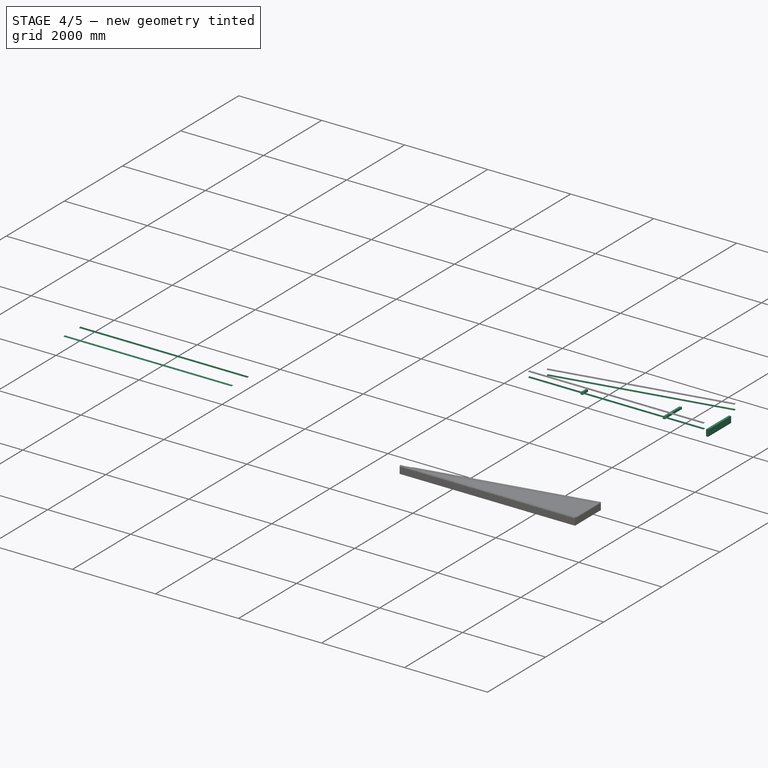
[diagram: stage 4 of 5 — iso view after this stage's code; geometry added in this stage tinted green]
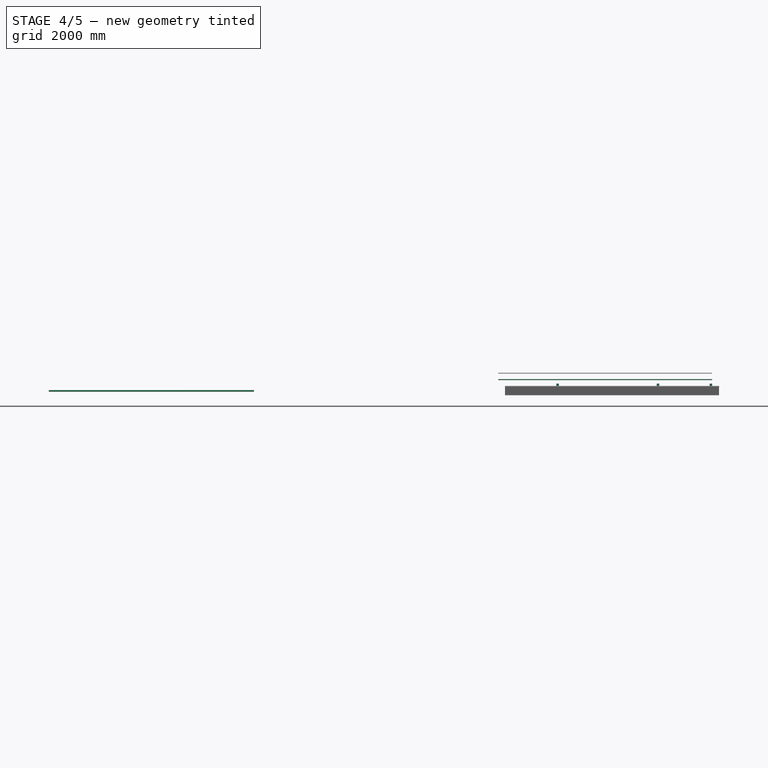
[diagram: stage 4 of 5 — front view after this stage's code; geometry added in this stage tinted green]
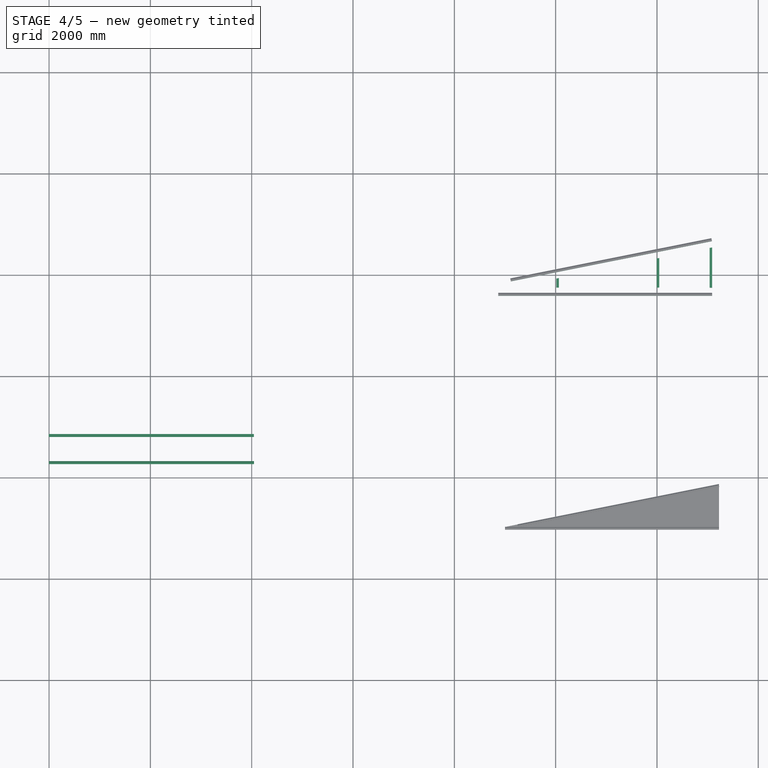
[diagram: stage 4 of 5 — top view after this stage's code; geometry added in this stage tinted green]
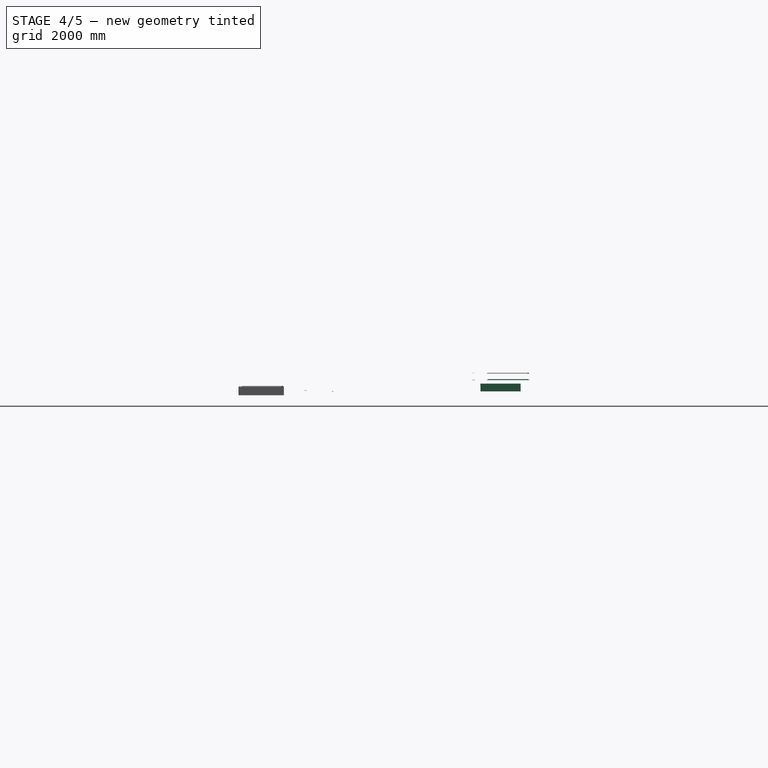
[diagram: stage 4 of 5 — right view after this stage's code; geometry added in this stage tinted green]
FEATURE [Part::FeaturePython] Structure025  label="Clone of Structure002"  # WARN: FeaturePython — macro-defined, semantics opaque (R4)
  CloneOf = -> Structure018
  Height = 2000
  Length = 200
  MoveWithHost = false
  Nodes = (2) [(0,0,0),(0,0,2000)]
  Normal = (0,0,0)
  Role = 0
  Width = 200
FEATURE [App::Annotation] Text010
  LabelText = 2" x 6" x 3'-9.64" lumber (1 piece) with one diagonal cut
  Position = (-1.05265,-1555.76,0)
FEATURE [App::FeaturePython] Dimension018  # Draft dimension (typed FeaturePython)
  Dimline = (264.064,-901.332,0)
  Direction = (0,0,0)
  Distance = 10.16
  End = (4317.06,-671.164,152.4)
  Normal = (0,0,1)
  Start = (4306.9,-671.164,152.4)
FEATURE [App::FeaturePython] Dimension019  # Draft dimension (typed FeaturePython)
  Dimline = (859.016,-2009.75,0)
  Direction = (0,0,0)
  Distance = 10.16
  End = (803.01,-1727.86,152.4)
  Normal = (0,0,1)
  Start = (792.85,-1727.86,152.4)
FEATURE [App::FeaturePython] Dimension020  # Draft dimension (typed FeaturePython)
  Dimline = (515.743,-2232.28,0)
  Direction = (0,0,0)
  Distance = 792.863
  End = (803.01,-1778.66,152.4)
  Normal = (0,0,1)
  Start = (10.1464,-1778.31,152.4)
FEATURE [Part::FeaturePython] Structure026  label="Clone of Structure005"  # WARN: FeaturePython — macro-defined, semantics opaque (R4)
  CloneOf = -> Structure021
  Height = 2000
  Length = 200
  MoveWithHost = false
  Nodes = (2) [(0,0,0),(0,0,2000)]
  Normal = (0,0,0)
  Placement = pos=(0,0,101.6) rot=(0,0,1;0rad)
  Role = 0
  Width = 200
FEATURE [Part::FeaturePython] Structure027  label="Clone of Structure004"  # WARN: FeaturePython — macro-defined, semantics opaque (R4)
  CloneOf = -> Structure020
  Height = 2000
  Length = 200
  MoveWithHost = false
  Nodes = (2) [(0,0,0),(0,0,2000)]
  Normal = (0,0,0)
  Placement = pos=(0,0,101.6) rot=(0,0,1;0rad)
  Role = 0
  Width = 200
FEATURE [App::DocumentObjectGroup] Group008  label="Structure"
  Group = -> [Structure022,Structure023,Structure024,Structure025,Structure026,Structure027]
FEATURE [App::FeaturePython] Dimension021  # Draft dimension (typed FeaturePython)
  Dimline = (768.909,-2532.46,0)
  Direction = (0,0,0)
  Distance = 1159.32
  End = (1169.46,-1778.66,152.4)
  Normal = (0,0,1)
  Start = (10.1464,-1778.31,152.4)
FEATURE [App::FeaturePython] Dimension022  # Draft dimension (typed FeaturePython)
  Dimline = (802.807,-2232.41,0)
  Direction = (0,0,0)
  Distance = 366.455
  End = (1169.46,-1778.66,152.4)
  Normal = (0,0,1)
  Start = (803.01,-1778.66,152.4)
FEATURE [App::FeaturePython] Dimension023  # Draft dimension (typed FeaturePython)
  Dimline = (627.468,-3660.71,0)
  Direction = (0,0,0)
  Distance = 10.0893
  End = (597.054,-3341.97,152.4)
  Normal = (0,0,1)
  Start = (586.965,-3341.97,152.4)
FEATURE [App::FeaturePython] Dimension024  # Draft dimension (typed FeaturePython)
  Dimline = (195.195,-3919.51,0)
  Direction = (0,0,0)
  Distance = 585.172
  End = (597.054,-3392.41,152.4)
  Normal = (0,0,1)
  Start = (11.882,-3392.41,152.4)
FEATURE [App::FeaturePython] Dimension025  # Draft dimension (typed FeaturePython)
  Dimline = (597.054,-3919.51,0)
  Direction = (0,0,0)
  Distance = 178.686
  End = (775.741,-3392.41,152.4)
  Normal = (0,0,1)
  Start = (597.054,-3392.41,152.4)
FEATURE [App::FeaturePython] Dimension026  # Draft dimension (typed FeaturePython)
  Dimline = (199.065,-4252.08,0)
  Direction = (0,0,0)
  Distance = 763.859
  End = (775.741,-3392.41,152.4)
  Normal = (0,0,1)
  Start = (11.882,-3392.41,152.4)
FEATURE [App::Annotation] Text011
  LabelText = 2" x 2" x 2'-6.07" lumber (1 piece) with one diagonal cut
  Position = (-10.6204,-3112.42,0)
FEATURE [App::FeaturePython] Dimension027  # Draft dimension (typed FeaturePython)
  Dimline = (13478.6,-3661.36,0)
  Direction = (0,0,0)
  Distance = 895.471
  End = (13089.6,-3404.49,152.4)
  Normal = (0,0,1)
  Start = (13089.6,-4299.96,152.4)
FEATURE [Part::FeaturePython] Structure028  label="Side aluminium profile (bottom)001"  # WARN: FeaturePython — macro-defined, semantics opaque (R4)
  Base = -> Sketch
  BaseMaterial = -> Material002
  Height = 4050
  Length = 0
  MoveWithHost = false
  Normal = (0,0,0)
  Placement = pos=(4043.58,-7166.65,0) rot=(0.57735,-0.57735,-0.57735;2.0944rad)
  Role = 0
  Width = 200
FEATURE [Part::FeaturePython] Structure029  label="Side aluminium profile (top)001"  # WARN: FeaturePython — macro-defined, semantics opaque (R4)
  Base = -> Sketch001
  BaseMaterial = -> Material002
  Height = 4050
  Length = 0
  MoveWithHost = false
  Normal = (0,0,0)
  Placement = pos=(4045.6,-7702.53,0) rot=(0.57735,-0.57735,-0.57735;2.0944rad)
  Role = 0
  Width = 200
FEATURE [Part::Part2DObjectPython] DWire008  # Draft 2D object (typed FeaturePython)
  ChamferSize = 0
  Closed = true
  End = (4293.13,-5026.73,-4.479e-09)
  FilletRadius = 0
  Length = 9476.61
  MakeFace = false
  Placement = pos=(13159.4,-9326.7,-4.479e-09) rot=(0,0,1;3.14159rad)
  Points = (4) [(13089.6,-4299.96,0),(13089.6,-3404.49,0),(8866.28,-4249.16,4.47878e-09),(8866.28,-4299.96,0)]
  Start = (69.7804,-5026.73,-4.479e-09)
FEATURE [App::FeaturePython] Dimension028  # Draft dimension (typed FeaturePython)
  Dimline = (3634.4,-6183.77,0)
  Direction = (0,0,0)
  Distance = 4223.35
  End = (4293.13,-5973.01,11.1125)
  Normal = (0,0,1)
  Start = (69.7764,-5973.01,11.1125)
FEATURE [App::FeaturePython] Dimension029  # Draft dimension (typed FeaturePython)
  Dimline = (4814.24,-5351.33,0)
  Direction = (0,0,0)
  Distance = 946.336
  End = (4293.13,-5026.73,-4.479e-09)
  Normal = (0,0,1)
  Start = (4293.13,-5973.01,11.1125)
FEATURE [App::FeaturePython] Dimension030  # Draft dimension (typed FeaturePython)
  Dimline = (4535,-5118.29,0)
  Direction = (0,0,0)
  Distance = 50.8
  End = (4293.13,-5026.73,-4.479e-09)
  Normal = (0,0,1)
  Start = (4293.13,-5077.53,0)
FEATURE [App::DocumentObjectGroup] Group003  label="Annotations"
  Group = -> [Text008,Text007,Text005,Text004,Text003,Rectangle,Text,Text009,Text010,Dimension,Dimension017,Dimension018,Dimension019,Dimension020,Dimension021,Dimension022,Dimension023,Dimension024,Dimension025,Dimension026,Text011,DWire008,Dimension028,Dimension029,Dimension030]
FEATURE [App::DocumentObjectGroup] Group  label="Components"
  Group = -> [Panel,Group003,Group005,Group006,Group007]
FEATURE [Drawing::FeatureViewPython] ViewGroup  # drawing view (typed FeaturePython)
  Direction = (0,0,1)
  FillStyle = 0
  FontSize = 5
  LineStyle = 0
  LineWidth = 0.15
  Rotation = 0
  Scale = 0.02
  Source = -> Group
  ViewResult = <blob: 100826 chars omitted>
  Visible = true
  X = 40
  Y = 40
FEATURE [Part::FeaturePython] Structure030  label="Side aluminium profile (bottom)002"  # WARN: FeaturePython — macro-defined, semantics opaque (R4)
  Base = -> Sketch
  BaseMaterial = -> Material002
  Height = 4223.35
  Length = 0
  MoveWithHost = false
  Normal = (0,0,0)
  Placement = pos=(13089.6,-4385.12,229.867) rot=(0.57735,-0.57735,-0.57735;2.0944rad)
  Role = 0
  Width = 200
FEATURE [Part::FeaturePython] Structure031  label="Side aluminium profile (bottom)003"  # WARN: FeaturePython — macro-defined, semantics opaque (R4)
  Base = -> Sketch
  BaseMaterial = -> Material002
  Height = 4050
  Length = 0
  MoveWithHost = false
  Normal = (0,0,0)
  Placement = pos=(13080.8,-3306.13,229.867) rot=(0.653141,-0.535447,-0.535447;1.98443rad)
  Role = 0
  Width = 200
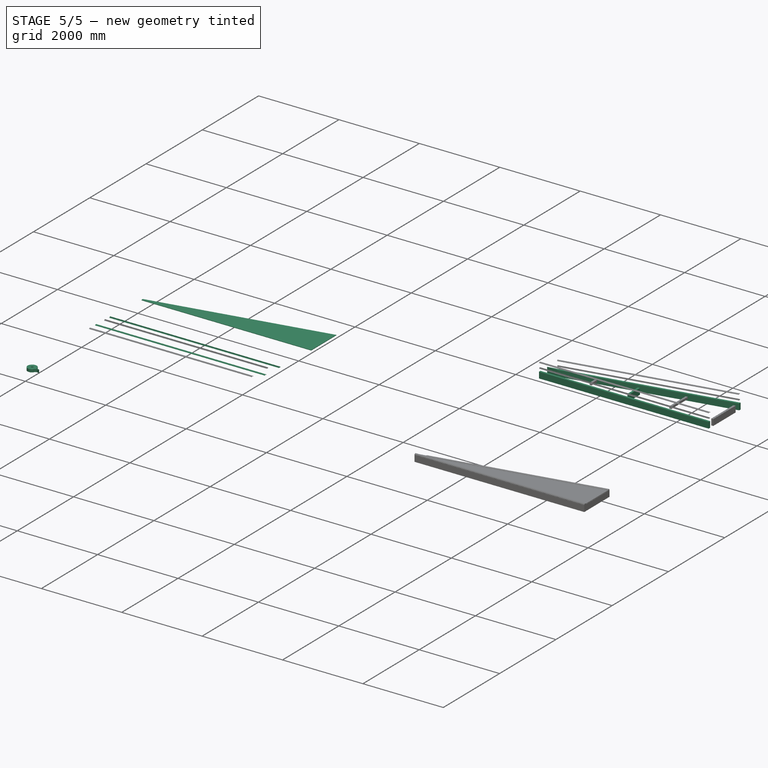
[diagram: stage 5 of 5 — iso view after this stage's code; geometry added in this stage tinted green]
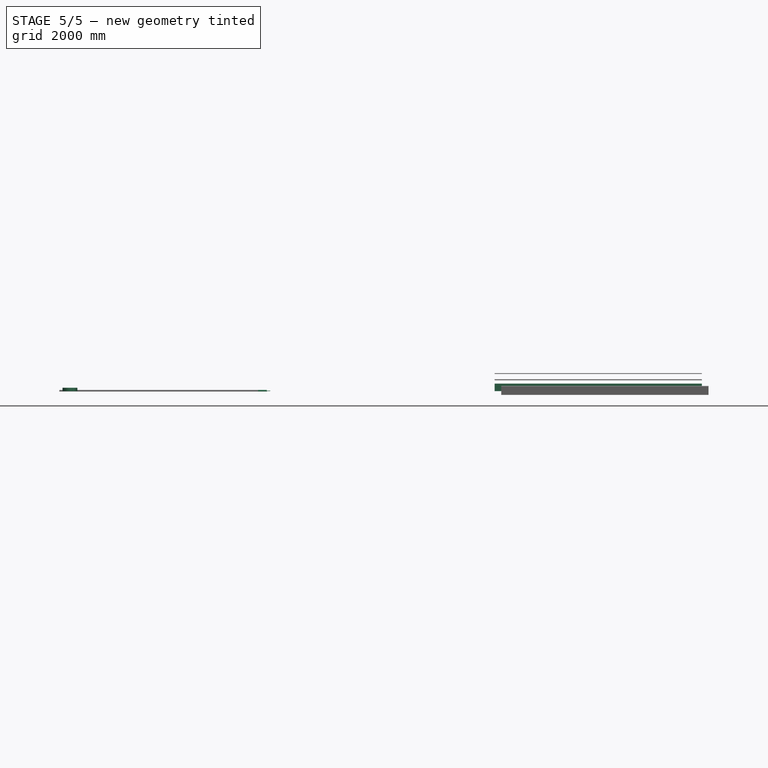
[diagram: stage 5 of 5 — front view after this stage's code; geometry added in this stage tinted green]
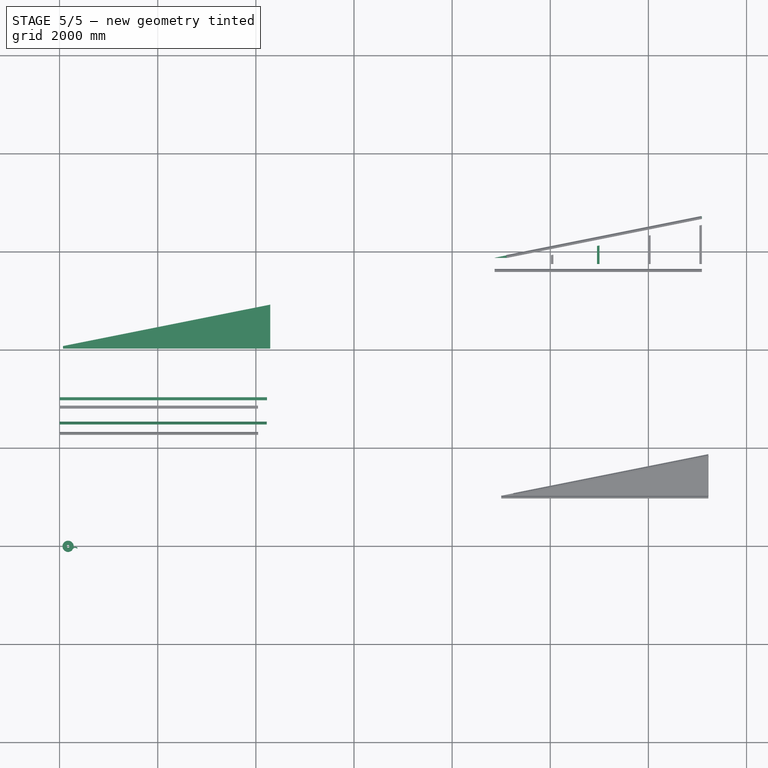
[diagram: stage 5 of 5 — top view after this stage's code; geometry added in this stage tinted green]
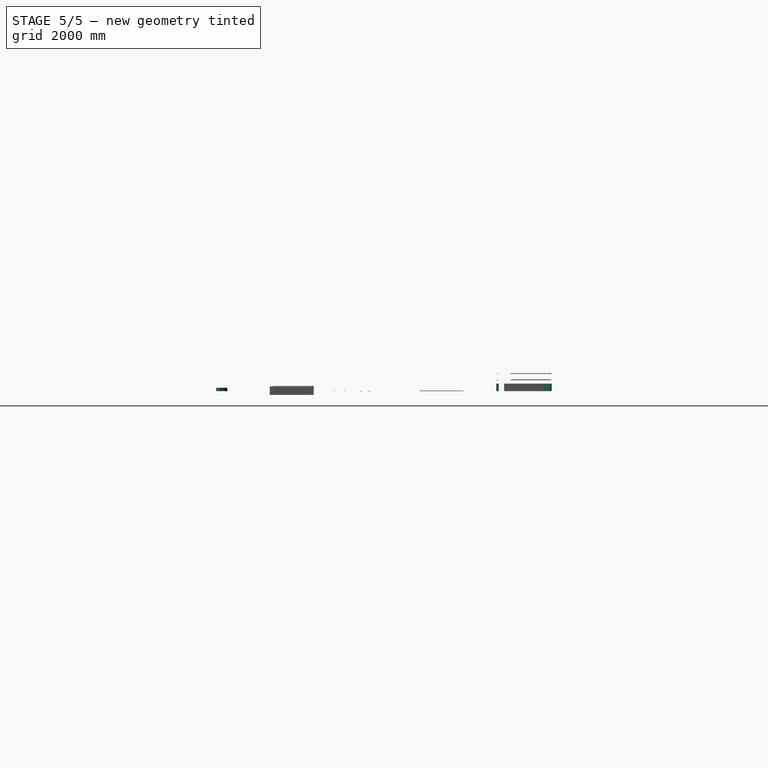
[diagram: stage 5 of 5 — right view after this stage's code; geometry added in this stage tinted green]
FEATURE [App::Annotation] Text  label="Side lumbers description"
  LabelText = 2" x 6" x 13'-10.27" lumber (1 piece)
  Position = (3.50563,150.932,0)
FEATURE [Part::Part2DObjectPython] Rectangle  # Draft 2D object (typed FeaturePython)
  ChamferSize = 0
  FilletRadius = 0
  Height = -12000
  Length = 6000
  MakeFace = false
  Placement = pos=(-541.625,624.587,0) rot=(0,0,1;0rad)
FEATURE [App::Annotation] Text003  label="Title"
  LabelText = Panel components
  Position = (-516.762,743.015,0)
FEATURE [App::MaterialObjectPython] Material001  label="Polycarbonate"  # material (typed FeaturePython)
  Material = Description=Double-walled polycarbonate; DiffuseColor=(0.3333333333333333, 0.6666666666666666, 1.0); Name=Polycarbonate
FEATURE [App::Annotation] Text004  label="Polycarbonate panel description"
  LabelText = 13'-10.27" x 3'-1.25" x 7/16" double-walled polycarbonate panel | cut in diagonal
  Position = (26.08,-4789.82,0)
FEATURE [Sketcher::SketchObject] Sketch
  sketch-geometry (12):
    g0: LineSegment StartX=-29.6219 StartY=-7.52205 StartZ=0 EndX=30.1578 EndY=-7.52205 EndZ=0
    g1: LineSegment StartX=30.1578 StartY=-7.52205 StartZ=0 EndX=30.1578 EndY=-3.85919 EndZ=0
    g2: LineSegment StartX=30.1578 StartY=-3.85919 StartZ=0 EndX=7.1723 EndY=-3.85919 EndZ=0
    g3: LineSegment StartX=7.1723 StartY=-3.85919 StartZ=0 EndX=7.1723 EndY=11.1174 EndZ=0
    g4: LineSegment StartX=7.1723 StartY=11.1174 StartZ=0 EndX=3.50944 EndY=11.1174 EndZ=0
    g5: LineSegment StartX=3.50944 StartY=11.1174 StartZ=0 EndX=3.50944 EndY=-3.85919 EndZ=0
    g6: LineSegment StartX=3.50944 StartY=-3.85919 StartZ=0 EndX=-2.97357 EndY=-3.85919 EndZ=0
    g7: LineSegment StartX=-2.97357 StartY=-3.85919 StartZ=0 EndX=-2.97357 EndY=11.1174 EndZ=0
    g8: LineSegment StartX=-2.97357 StartY=11.1174 StartZ=0 EndX=-6.63643 EndY=11.1174 EndZ=0
    g9: LineSegment StartX=-6.63643 StartY=11.1174 StartZ=0 EndX=-6.63643 EndY=-3.85919 EndZ=0
    g10: LineSegment StartX=-6.63643 StartY=-3.85919 StartZ=0 EndX=-29.6219 EndY=-3.85919 EndZ=0
    g11: LineSegment StartX=-29.6219 StartY=-3.85919 StartZ=0 EndX=-29.6219 EndY=-7.52205 EndZ=0
  constraints (30):
    c: Horizontal(g0)
    c: Coincident(g0,g1)
    c: Coincident(g1,g2)
    c: Horizontal(g2)
    c: Coincident(g2,g3)
    c: Vertical(g3)
    c: Coincident(g3,g4)
    c: Coincident(g4,g5)
    c: Vertical(g5)
    c: Coincident(g5,g6)
    c: Coincident(g6,g7)
    c: Vertical(g7)
    c: Coincident(g7,g8)
    c: Horizontal(g8)
    c: Coincident(g8,g9)
    c: Vertical(g9)
    c: Coincident(g9,g10)
    c: Horizontal(g10)
    c: Coincident(g10,g11)
    c: Coincident(g11,g0)
    c: Horizontal(g6)
    c: Vertical(g1)
    c: Vertical(g11)
    c: Horizontal(g4)
    c: Equal(g10,g2)
    c: DistanceY(g9,g6) = 0
    c: DistanceY(g5,g2) = 0
    c: Equal(g8,g4)
    c: Equal(g11,g8)
    c: DistanceY(g7,g4) = 0
FEATURE [Sketcher::SketchObject] Sketch001
  Placement = pos=(0,7.97334,0) rot=(0,0,1;0rad)
  sketch-geometry (12):
    g0: LineSegment StartX=-30.0556 StartY=4.24198 StartZ=0 EndX=-19.2735 EndY=4.24198 EndZ=0
    g1: LineSegment StartX=-19.2735 StartY=4.24198 StartZ=0 EndX=-7.87271 EndY=17.9872 EndZ=0
    g2: LineSegment StartX=-7.87271 StartY=17.9872 StartZ=0 EndX=10.2206 EndY=17.9872 EndZ=0
    g3: LineSegment StartX=10.2206 StartY=17.9872 StartZ=0 EndX=18.9282 EndY=4.24198 EndZ=0
    g4: LineSegment StartX=18.9282 StartY=4.24198 StartZ=0 EndX=30.1723 EndY=4.24198 EndZ=0
    g5: LineSegment StartX=30.1723 StartY=4.24198 StartZ=0 EndX=30.1723 EndY=1.15852 EndZ=0
    g6: LineSegment StartX=30.1723 StartY=1.15852 StartZ=0 EndX=16.5802 EndY=1.15852 EndZ=0
    g7: LineSegment StartX=16.5802 StartY=1.15852 StartZ=0 EndX=8.0588 EndY=14.6097 EndZ=0
    g8: LineSegment StartX=8.0588 StartY=14.6097 StartZ=0 EndX=-6.67518 EndY=14.6097 EndZ=0
    g9: LineSegment StartX=-6.67518 StartY=14.6097 StartZ=0 EndX=-17.8321 EndY=1.15852 EndZ=0
    g10: LineSegment StartX=-17.8321 StartY=1.15852 StartZ=0 EndX=-30.0556 EndY=1.15852 EndZ=0
    g11: LineSegment StartX=-30.0556 StartY=1.15852 StartZ=0 EndX=-30.0556 EndY=4.24198 EndZ=0
  constraints (24):
    c: Horizontal(g0)
    c: Coincident(g0,g1)
    c: Coincident(g1,g2)
    c: Horizontal(g2)
    c: Coincident(g2,g3)
    c: Coincident(g3,g4)
    c: Horizontal(g4)
    c: Coincident(g4,g5)
    c: Coincident(g5,g6)
    c: Horizontal(g6)
    c: Coincident(g6,g7)
    c: Coincident(g7,g8)
    c: Horizontal(g8)
    c: Coincident(g8,g9)
    c: Coincident(g9,g10)
    c: Horizontal(g10)
    c: Coincident(g10,g11)
    c: Coincident(g11,g0)
    c: Vertical(g11)
    c: Vertical(g5)
    c: DistanceY(g9,g6) = 0
    c: Equal(g11,g5)
    c: Parallel(g1,g9)
    c: Parallel(g7,g3)
FEATURE [App::MaterialObjectPython] Material002  label="Aluminium"  # material (typed FeaturePython)
  Material = DiffuseColor=(0.5019607843137255, 0.5019607843137255, 0.5019607843137255); Name=Aluminium
FEATURE [App::DocumentObjectGroupPython] MaterialContainer  label="Materials"  # scripted group (container) (typed FeaturePython)
  Group = -> [Material,Material001,Material002]
FEATURE [Part::FeaturePython] Structure013  label="Side aluminium profile (bottom)"  # WARN: FeaturePython — macro-defined, semantics opaque (R4)
  Base = -> Sketch
  BaseMaterial = -> Material002
  Height = 4223.35
  Length = 0
  MoveWithHost = false
  Normal = (0,0,0)
  Placement = pos=(4226.84,-6995.7,0) rot=(0.57735,-0.57735,-0.57735;2.0944rad)
  Role = 0
  Width = 200
FEATURE [Part::FeaturePython] Structure014  label="Side aluminium profile (top)"  # WARN: FeaturePython — macro-defined, semantics opaque (R4)
  Base = -> Sketch001
  BaseMaterial = -> Material002
  Height = 4223.35
  Length = 0
  MoveWithHost = false
  Normal = (0,0,0)
  Placement = pos=(4221.11,-7491.19,0) rot=(0.57735,-0.57735,-0.57735;2.0944rad)
  Role = 0
  Width = 200
FEATURE [App::Annotation] Text005  label="Lateral profiles description"
  LabelText = 8' bottom and top lateral aluminium  profiles (2x each)
  Position = (0.0824738,-6820.1,0)
FEATURE [Sketcher::SketchObject] Sketch004
  sketch-geometry (4):
    g0: LineSegment StartX=0 StartY=-51.3548 StartZ=0 EndX=-3.23249 EndY=-47.684 EndZ=0
    g1: LineSegment StartX=-3.23249 StartY=-47.684 StartZ=0 EndX=-3.23249 EndY=28.516 EndZ=0
    g2: LineSegment StartX=-3.23249 StartY=28.516 StartZ=0 EndX=-9.66342 EndY=34.5624 EndZ=0
    g3: LineSegment StartX=-9.66342 StartY=34.5624 StartZ=0 EndX=0 EndY=34.5624 EndZ=0
  constraints (8):
    c: Coincident(g0,g1)
    c: Vertical(g1)
    c: Coincident(g1,g2)
    c: Coincident(g2,g3)
    c: PointOnObject(g3,g-2)
    c: Horizontal(g3)
    c: PointOnObject(g0,g-2)
    c: DistanceY(g1) = 76.2
FEATURE [Part::Revolution] Revolve  label="3" screw"
  Angle = 360
  Axis = (0,1,0)
  Base = (0,0,0)
  Placement = pos=(0,-8742.55,0) rot=(0,0,1;0rad)
  Solid = true
  Source = -> Sketch004
FEATURE [Part::FeaturePython] Array  label="3" Screws"  # Draft array (typed FeaturePython)
  Angle = 360
  ArrayType = 0
  Axis = (0,0,1)
  Base = -> Revolve
  Center = (0,0,0)
  Fuse = false
  IntervalAxis = (0,0,0)
  IntervalX = (50,0,0)
  IntervalY = (0,1,0)
  IntervalZ = (0,0,0)
  NumberPolar = 1
  NumberX = 36
  NumberY = 1
  NumberZ = 1
  Placement = pos=(0,71.3196,0) rot=(0,0,1;0rad)
FEATURE [App::Annotation] Text007  label="Screws description"
  LabelText = 36 x 3" screws | 16 x 1" screws + washers (size depends on the choosen aluminium profiles)
  Position = (5.23079,-8381.63,0)
FEATURE [Sketcher::SketchObject] Sketch005
  sketch-geometry (8):
    g0: LineSegment StartX=0 StartY=-39.8998 StartZ=0 EndX=-3.15415 EndY=-37.1964 EndZ=0
    g1: LineSegment StartX=-3.15415 StartY=-37.1964 StartZ=0 EndX=-3.15415 EndY=-11.7964 EndZ=0
    g2: LineSegment StartX=-3.15415 StartY=-11.7964 StartZ=0 EndX=-6.31218 EndY=-7.94085 EndZ=0
    g3: LineSegment StartX=-6.31218 StartY=-7.94085 StartZ=0 EndX=0 EndY=-7.94085 EndZ=0
    g4: LineSegment StartX=-4.26074 StartY=-13.2651 StartZ=0 EndX=-10.8688 EndY=-13.2651 EndZ=0
    g5: LineSegment StartX=-10.8688 StartY=-13.2651 StartZ=0 EndX=-10.8688 EndY=-16.7574 EndZ=0
    g6: LineSegment StartX=-10.8688 StartY=-16.7574 StartZ=0 EndX=-4.26074 EndY=-16.7574 EndZ=0
    g7: LineSegment StartX=-4.26074 StartY=-16.7574 StartZ=0 EndX=-4.26074 EndY=-13.2651 EndZ=0
  constraints (16):
    c: Coincident(g0,g1)
    c: Vertical(g1)
    c: Coincident(g1,g2)
    c: Coincident(g2,g3)
    c: PointOnObject(g3,g-2)
    c: Horizontal(g3)
    c: PointOnObject(g0,g-2)
    c: DistanceY(g1) = 25.4
    c: Coincident(g4,g5)
    c: Coincident(g5,g6)
    c: Coincident(g6,g7)
    c: Coincident(g7,g4)
    c: Horizontal(g4)
    c: Horizontal(g6)
    c: Vertical(g5)
    c: Vertical(g7)
FEATURE [Part::Revolution] Revolve001  label="1" screw"
  Angle = 360
  Axis = (0,1,0)
  Base = (0,0,0)
  Placement = pos=(0,-8912.47,0) rot=(0,0,1;0rad)
  Solid = true
  Source = -> Sketch005
FEATURE [Part::FeaturePython] Array001  label="1" Screws + washers"  # Draft array (typed FeaturePython)
  Angle = 360
  ArrayType = 0
  Axis = (0,0,1)
  Base = -> Revolve001
  Center = (0,0,0)
  Fuse = false
  IntervalAxis = (0,0,0)
  IntervalX = (50,0,0)
  IntervalY = (0,1,0)
  IntervalZ = (0,0,0)
  NumberPolar = 1
  NumberX = 16
  NumberY = 1
  NumberZ = 1
  Placement = pos=(0,71.3196,0) rot=(0,0,1;0rad)
FEATURE [Sketcher::SketchObject] Sketch006
  Placement = pos=(173.876,-10004.6,0) rot=(0,0,1;0rad)
  sketch-geometry (5):
    g0: Circle CenterX=0 CenterY=0 CenterZ=0 NormalX=0 NormalY=0 NormalZ=1 Radius=26.903
    g1: ArcOfCircle CenterX=0 CenterY=0 CenterZ=0 NormalX=0 NormalY=0 NormalZ=1 Radius=114.247 StartAngle=6.13597 EndAngle=11.7966
    g2: ArcOfCircle CenterX=143.944 CenterY=-95.1101 CenterZ=0 NormalX=0 NormalY=0 NormalZ=1 Radius=63.8422 StartAngle=0.806878 EndAngle=2.89481
    g3: ArcOfCircle CenterX=143.944 CenterY=-95.1101 CenterZ=0 NormalX=0 NormalY=0 NormalZ=1 Radius=84.2369 StartAngle=1.01893 EndAngle=1.9468
    g4: LineSegment StartX=188.107 StartY=-23.3783 StartZ=0 EndX=188.107 EndY=-49.0077 EndZ=0
  constraints (8):
    c: Coincident(g0,g-1)
    c: Coincident(g1,g-1)
    c: Coincident(g2,g1)
    c: Coincident(g3,g2)
    c: Coincident(g3,g1)
    c: Coincident(g4,g3)
    c: Coincident(g4,g2)
    c: Vertical(g4)
FEATURE [PartDesign::Pad] Pad  label="Sealing tape"
  Length = 70
  Length2 = 100
  Placement = pos=(173.876,-10004.6,0) rot=(0,0,1;0rad)
  Sketch = -> Sketch006
  Type = 0
FEATURE [App::DocumentObjectGroup] Group005  label="Lumbers"
  Group = -> [Structure,Structure017,Structure018,Structure019,Structure020,Structure021]
FEATURE [Part::FeaturePython] Structure022  label="Clone of 16' Side lumber 01"  # WARN: FeaturePython — macro-defined, semantics opaque (R4)
  BaseMaterial = -> Material
  CloneOf = -> Structure
  Height = 2000
  Length = 200
  MoveWithHost = false
  Nodes = (2) [(0,0,0),(0,0,2000)]
  Normal = (0,0,0)
  Placement = pos=(8866.28,-4385.48,76.2) rot=(0,0,1;0rad)
  Role = 0
  Width = 200
FEATURE [Part::FeaturePython] Structure023  label="Clone of Structure001"  # WARN: FeaturePython — macro-defined, semantics opaque (R4)
  CloneOf = -> Structure017
  Height = 2000
  Length = 200
  MoveWithHost = false
  Nodes = (2) [(0,0,0),(0,0,2000)]
  Normal = (0,0,0)
  Placement = pos=(0,125.388,0) rot=(0,0,1;0rad)
  Role = 0
  Width = 200
FEATURE [App::FeaturePython] Dimension  # Draft dimension (typed FeaturePython)
  Dimline = (3861.85,-1042.27,0)
  Direction = (0,0,0)
  Distance = 4306.99
  End = (4317.06,-620.364,152.4)
  Normal = (0,0,1)
  Start = (10.0636,-620.364,152.4)
FEATURE [App::FeaturePython] Dimension017  # Draft dimension (typed FeaturePython)
  Dimline = (205.795,-901.332,0)
  Direction = (0,0,0)
  Distance = 254
  End = (264.064,-620.364,152.4)
  Normal = (0,0,1)
  Start = (10.0636,-620.364,152.4)
FEATURE [App::Annotation] Text009
  LabelText = 2" x 6" x 14'-1.57" lumber (1 piece) with chamfers on both sides
  Position = (2.2315,-428.705,0)
FEATURE [Part::FeaturePython] Structure024  label="Clone of Structure003"  # WARN: FeaturePython — macro-defined, semantics opaque (R4)
  CloneOf = -> Structure019
  Height = 2000
  Length = 200
  MoveWithHost = false
  Nodes = (2) [(0,0,0),(0,0,2000)]
  Normal = (0,0,0)
  Role = 0
  Width = 200
FEATURE [App::DocumentObjectGroup] Group007  label="Aluminium profiles"
  Group = -> [Structure013,Structure014,Structure028,Structure029]
FEATURE [Part::Part2DObjectPython] DWire007  # Draft 2D object (typed FeaturePython)
  ChamferSize = 0
  Closed = true
  End = (69.7764,-5994.59,0)
  FilletRadius = 0
  Length = 9476.61
  MakeFace = true
  Placement = pos=(-8796.5,-1694.63,0) rot=(0,0,1;0rad)
  Points = (4) [(13089.6,-4299.96,0),(13089.6,-3404.49,0),(8866.28,-4249.16,4.47878e-09),(8866.28,-4299.96,0)]
  Start = (4293.13,-5994.59,0)
FEATURE [Part::FeaturePython] Panel  label="16'x3' Double-walled polycarbonate panel"  # WARN: FeaturePython — macro-defined, semantics opaque (R4)
  Base = -> DWire007
  BaseMaterial = -> Material001
  Length = 0
  MoveWithHost = false
  Placement = pos=(0,21.5881,0) rot=(0,0,1;0rad)
  Role = 0
  Sheets = 1
  Thickness = 11.1125
  Width = 0
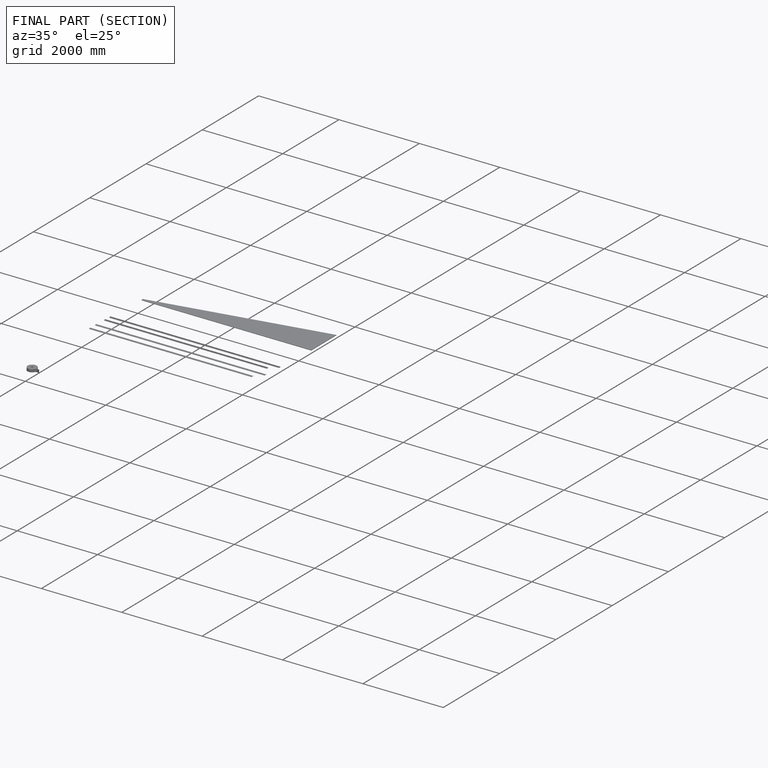
[diagram: finished part — half-section view (interior)]
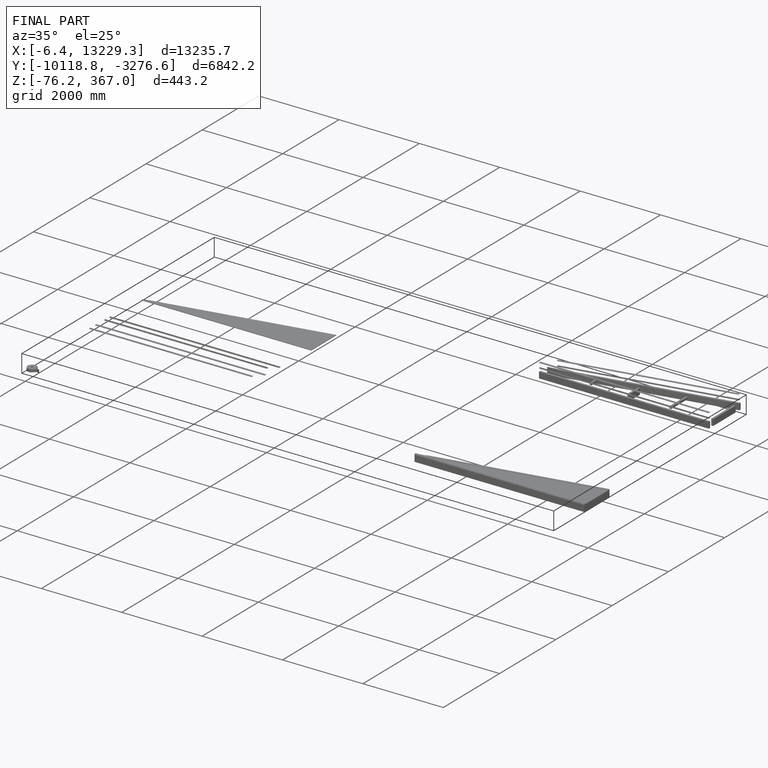
[diagram: finished part — iso view with bounding-box wireframe]
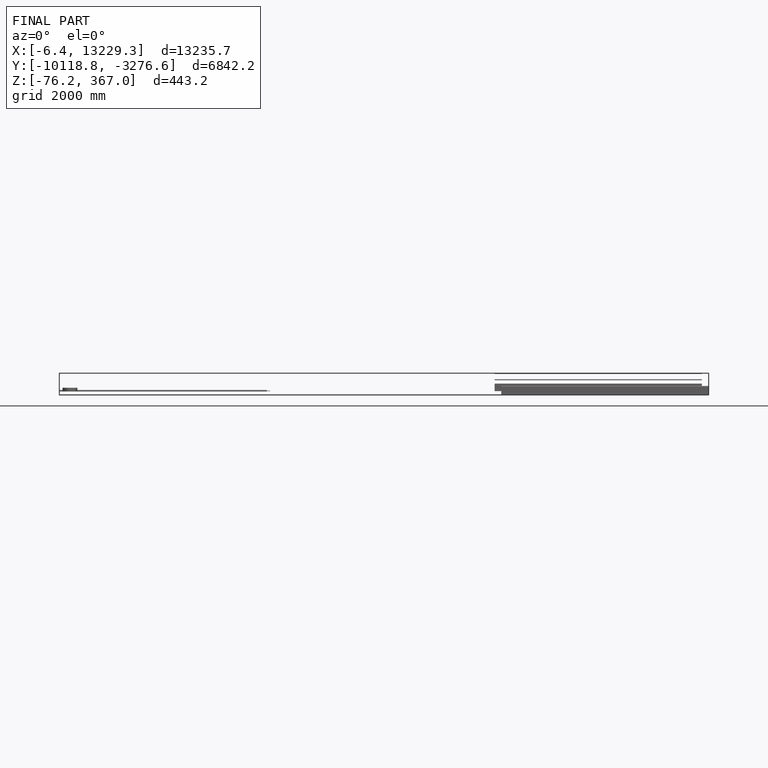
[diagram: finished part — front view with bounding-box wireframe]
